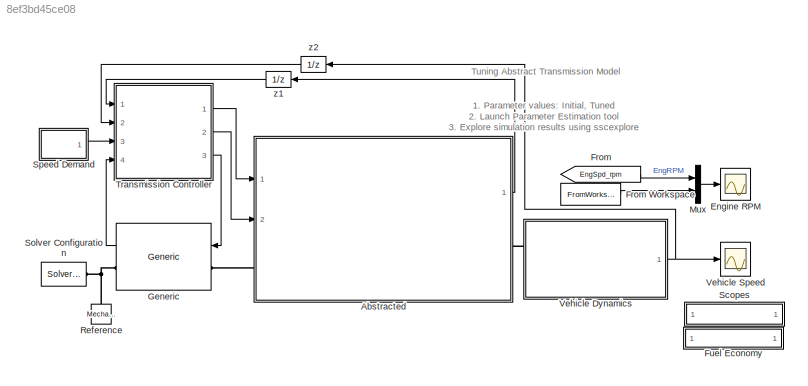
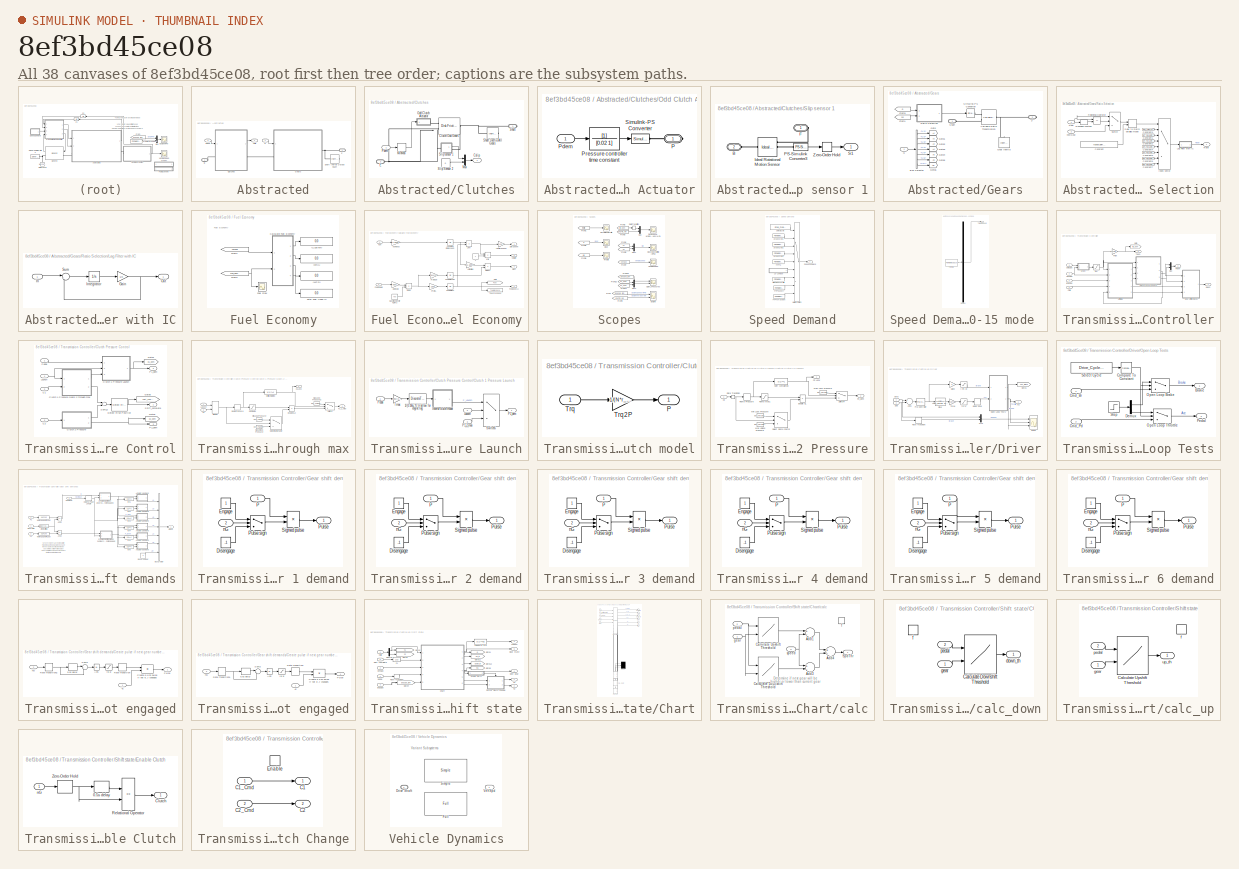
[diagram: thumbnail index - all 38 canvases of the model, root first then tree order]
MODEL slx_8ef3bd45ce08
KIND model
CONFIG AbsTol = auto
CONFIG EnableMultiTasking = on
CONFIG FixedStep = auto
CONFIG MaxStep = 0.1
CONFIG MinStep = auto
CONFIG PostLoadFcn = warning off Simulink:SampleTime:TsPropEnabOutputsChangeNotAligned;\nwarning off Simulink:blocks:MatchingFromNotFound\nwarning off Simulink:blocks:MatchingGotoNotFound\nwarning off Simulink:Engine:OutputNotConnected\nwarning off Simulink:Engine:LineWithoutDst\nwarning off Simulink:Engine:UINotUpdatedDuringRapidAccelSim\nwarning off Simulink:Commands:SetParamLinkChangeWarn\nwarning off Simulink:Engine:Save...<+31ch>
CONFIG PreLoadFcn = load UrbanCycle1;\nload UrbanCycle2;\nload UrbanCycle3;\nload UrbanCycle4;\nload UrbanCycle5;\nload UrbanCycle6;\nload UrbanCycle7;\nload UrbanCycle8;\nShift_Gear_Delay = 50;\nRatio_Time_Const = 0.1;\nDrive_Cycle_Num = 7;\nload RefRPMData;
CONFIG RelTol = 1e-3
CONFIG SampleTimeConstraint = Unconstrained
CONFIG Solver = ode1
CONFIG SolverName = ode1
CONFIG StartTime = 0.0
CONFIG StopTime = 15
BLOCK [SubSystem] Abstracted
  Ports = [2, 1, 0, 0, 0, 1, 1]
  RequestExecContextInheritance = off
BLOCK [PMIOPort] Abstracted/B
  Side = Left
BLOCK [SubSystem] Abstracted/Clutches
  Ports = [1, 1, 0, 0, 0, 1, 1]
  RequestExecContextInheritance = off
BLOCK [Reference] Abstracted/Clutches/Clutch Odd Gears  REF=sdl_lib/Clutches/Disk Friction Clutch
  Ports = [0, 0, 0, 0, 0, 2, 1]
  SourceBlock = sdl_lib/Clutches/Disk Friction Clutch
  SourceProductBaseCode = LD
  SourceProductName = Simscape Driveline
  SourceType = Disk Friction Clutch
BLOCK [Outport] Abstracted/Clutches/Cslip
  IconDisplay = Port number
BLOCK [PMIOPort] Abstracted/Clutches/E
  Port = 2
  Side = Left
BLOCK [MinMax] Abstracted/Clutches/MinMax
  Function = max
  InputSameDT = off
  Ports = [1, 1]
  SaturateOnIntegerOverflow = off
BLOCK [Mux] Abstracted/Clutches/Mux
  DisplayOption = bar
  Inputs = 2
  Ports = [2, 1]
BLOCK [SubSystem] Abstracted/Clutches/Odd Clutch Actuator
  Ports = [1, 0, 0, 0, 0, 0, 1]
  RequestExecContextInheritance = off
BLOCK [PMIOPort] Abstracted/Clutches/Odd Clutch Actuator/P
  Side = Right
BLOCK [Inport] Abstracted/Clutches/Odd Clutch Actuator/Pdem
  IconDisplay = Port number
BLOCK [TransferFcn] Abstracted/Clutches/Odd Clutch Actuator/Pressure controller time constant
  Denominator = [0.02 1]
BLOCK [Reference] Abstracted/Clutches/Odd Clutch Actuator/Simulink-PS Converter  REF=nesl_utility/Simulink-PS
Converter
  Ports = [1, 0, 0, 0, 0, 0, 1]
  SourceBlock = nesl_utility/Simulink-PS\nConverter
  SourceProductBaseCode = SS
  SourceProductName = Simscape
  SourceType = Simulink-PS\nConverter
BLOCK [Inport] Abstracted/Clutches/Pdem
  IconDisplay = Port number
BLOCK [PMIOPort] Abstracted/Clutches/Shaft
  Side = Right
BLOCK [Reference] Abstracted/Clutches/Shaft Inertia All Gears  REF=fl_lib/Mechanical/Rotational Elements/Inertia
  Ports = [0, 0, 0, 0, 0, 1]
  SourceBlock = fl_lib/Mechanical/Rotational Elements/Inertia
  SourceProductBaseCode = SS
  SourceProductName = Simscape
  SourceType = Inertia
BLOCK [Constant] Abstracted/Clutches/Slip Sensor 2
  Value = 0
BLOCK [SubSystem] Abstracted/Clutches/Slip sensor 1
  Ports = [0, 1, 0, 0, 0, 1, 1]
  RequestExecContextInheritance = off
BLOCK [PMIOPort] Abstracted/Clutches/Slip sensor 1/B
  Port = 2
  Side = Left
BLOCK [PMIOPort] Abstracted/Clutches/Slip sensor 1/F
  Side = Right
BLOCK [Reference] Abstracted/Clutches/Slip sensor 1/Ideal Rotational Motion Sensor  REF=fl_lib/Mechanical/Mechanical Sensors/Ideal Rotational
Motion Sensor
  Ports = [0, 0, 0, 0, 0, 1, 3]
  SourceBlock = fl_lib/Mechanical/Mechanical Sensors/Ideal Rotational\nMotion Sensor
  SourceProductBaseCode = SS
  SourceProductName = Simscape
  SourceType = Ideal Rotational\nMotion Sensor
BLOCK [Reference] Abstracted/Clutches/Slip sensor 1/PS-Simulink Converter3  REF=nesl_utility/PS-Simulink
Converter
  Ports = [0, 1, 0, 0, 0, 1]
  SourceBlock = nesl_utility/PS-Simulink\nConverter
  SourceProductBaseCode = SS
  SourceProductName = Simscape
  SourceType = PS-Simulink\nConverter
BLOCK [Outport] Abstracted/Clutches/Slip sensor 1/S1
  IconDisplay = Port number
BLOCK [ZeroOrderHold] Abstracted/Clutches/Slip sensor 1/Zero-Order Hold
  SampleTime = 0.01
BLOCK [Outport] Abstracted/Cslip
  IconDisplay = Port number
BLOCK [PMIOPort] Abstracted/F
  Port = 2
  Side = Right
BLOCK [Inport] Abstracted/G
  IconDisplay = Port number
BLOCK [SubSystem] Abstracted/Gears
  Ports = [1, 0, 0, 0, 0, 1, 1]
  RequestExecContextInheritance = off
BLOCK [BusSelector] Abstracted/Gears/Bus Selector
  OutputAsBus = off
  OutputSignals = U1,U2,U3,U4,U5,U6,UR
  Ports = [1, 7]
BLOCK [PMIOPort] Abstracted/Gears/F
  Port = 2
  Side = Right
BLOCK [From] Abstracted/Gears/From1
  GotoTag = nG
  TagVisibility = global
BLOCK [From] Abstracted/Gears/From9
  GotoTag = G
  TagVisibility = global
BLOCK [Inport] Abstracted/Gears/G
  IconDisplay = Port number
BLOCK [Reference] Abstracted/Gears/Gear Inertia  REF=fl_lib/Mechanical/Rotational Elements/Inertia
  Ports = [0, 0, 0, 0, 0, 1]
  SourceBlock = fl_lib/Mechanical/Rotational Elements/Inertia
  SourceProductBaseCode = SS
  SourceProductName = Simscape
  SourceType = Inertia
BLOCK [Goto] Abstracted/Gears/Goto
  GotoTag = A1
BLOCK [Goto] Abstracted/Gears/Goto1
  GotoTag = A2
BLOCK [Goto] Abstracted/Gears/Goto2
  GotoTag = A3
BLOCK [Goto] Abstracted/Gears/Goto3
  GotoTag = A4
BLOCK [Goto] Abstracted/Gears/Goto4
  GotoTag = A5
BLOCK [Goto] Abstracted/Gears/Goto5
  GotoTag = A6
BLOCK [Goto] Abstracted/Gears/Goto6
  GotoTag = AR
BLOCK [SubSystem] Abstracted/Gears/Ratio Selection
  Ports = [2, 1]
  RequestExecContextInheritance = off
BLOCK [Constant] Abstracted/Gears/Ratio Selection/Constant
  OutDataTypeStr = int8
  Value = round(Shift_Gear_Delay)
BLOCK [Constant] Abstracted/Gears/Ratio Selection/Constant1
  Value = DCT_Param.Transmission.Ratios(1)
BLOCK [Constant] Abstracted/Gears/Ratio Selection/Constant2
  Value = DCT_Param.Transmission.Ratios(2)
BLOCK [Constant] Abstracted/Gears/Ratio Selection/Constant3
  Value = 1.05*(max(DCT_Param.Transmission.Ratios))
BLOCK [Constant] Abstracted/Gears/Ratio Selection/Constant4
  Value = DCT_Param.Transmission.Ratios(3)
BLOCK [Constant] Abstracted/Gears/Ratio Selection/Constant5
  Value = DCT_Param.Transmission.Ratios(4)
BLOCK [Constant] Abstracted/Gears/Ratio Selection/Constant6
  Value = DCT_Param.Transmission.Ratios(5)
BLOCK [Constant] Abstracted/Gears/Ratio Selection/Constant7
  Value = DCT_Param.Transmission.Ratios(6)
BLOCK [Delay] Abstracted/Gears/Ratio Selection/Delay to match detailed model
  DelayLength = round(Shift_Gear_Delay)
  DelayLengthSource = Input port
  InitialCondition = 1
  InputPortMap = u0,p1
  Ports = [2, 1]
  SampleTime = 0.01
  UserDataPersistent = on
BLOCK [Inport] Abstracted/Gears/Ratio Selection/Gear
  IconDisplay = Port number
BLOCK [MultiPortSwitch] Abstracted/Gears/Ratio Selection/Index Vector
  DataPortOrder = Zero-based contiguous
  InputSameDT = off
  Inputs = 7
  Ports = [8, 1]
  SaturateOnIntegerOverflow = off
  zeroidx = on
BLOCK [SubSystem] Abstracted/Gears/Ratio Selection/Lag Filter with IC
  Ports = [1, 1]
  RequestExecContextInheritance = off
BLOCK [Gain] Abstracted/Gears/Ratio Selection/Lag Filter with IC/Gain
  Gain = 1/b
  OutDataTypeStr = Inherit: Inherit via internal rule
  ParamDataTypeStr = Inherit: Inherit via internal rule
  SaturateOnIntegerOverflow = off
BLOCK [Inport] Abstracted/Gears/Ratio Selection/Lag Filter with IC/In
  IconDisplay = Port number
BLOCK [Integrator] Abstracted/Gears/Ratio Selection/Lag Filter with IC/Integrator
  InitialCondition = x_initial*b
  Ports = [1, 1]
BLOCK [Outport] Abstracted/Gears/Ratio Selection/Lag Filter with IC/Out
  IconDisplay = Port number
BLOCK [Sum] Abstracted/Gears/Ratio Selection/Lag Filter with IC/Sum
  IconShape = round
  Inputs = |+-
  Ports = [2, 1]
BLOCK [Outport] Abstracted/Gears/Ratio Selection/Ratio
  IconDisplay = Port number
BLOCK [RelationalOperator] Abstracted/Gears/Ratio Selection/Relational Operator
  InputSameDT = off
  Operator = ==
  OutDataTypeStr = boolean
  Ports = [2, 1]
BLOCK [Rounding] Abstracted/Gears/Ratio Selection/Rounding Function
BLOCK [Switch] Abstracted/Gears/Ratio Selection/Switch
  Criteria = u2 > Threshold
  InputSameDT = off
  SaturateOnIntegerOverflow = off
BLOCK [Inport] Abstracted/Gears/Ratio Selection/nextGear
  IconDisplay = Port number
  Port = 2
BLOCK [PMIOPort] Abstracted/Gears/Shaft
  Side = Left
BLOCK [Reference] Abstracted/Gears/Simulink-PS Converter  REF=nesl_utility/Simulink-PS
Converter
  Ports = [1, 0, 0, 0, 0, 0, 1]
  SourceBlock = nesl_utility/Simulink-PS\nConverter
  SourceProductBaseCode = SS
  SourceProductName = Simscape
  SourceType = Simulink-PS\nConverter
BLOCK [Reference] Abstracted/Gears/Variable Ratio Transmission  REF=sdl_lib/Couplings & Drives/Variable Ratio
Transmission
  Ports = [0, 0, 0, 0, 0, 2, 1]
  SourceBlock = sdl_lib/Couplings & Drives/Variable Ratio\nTransmission
  SourceProductBaseCode = LD
  SourceProductName = Simscape Driveline
  SourceType = Variable Ratio\nTransmission
BLOCK [Inport] Abstracted/Pdem
  IconDisplay = Port number
  Port = 2
BLOCK [Reference] Abstracted/Shaft Inertia Output Shaft  REF=fl_lib/Mechanical/Rotational Elements/Inertia
  Ports = [0, 0, 0, 0, 0, 1]
  SourceBlock = fl_lib/Mechanical/Rotational Elements/Inertia
  SourceProductBaseCode = SS
  SourceProductName = Simscape
  SourceType = Inertia
BLOCK [Scope] Engine RPM
  ExtModeUploadOption = log
  Floating = off
  NumInputPorts = 1
  Ports = [1]
  ScopeSpecificationString = Simulink.scopes.TimeScopeBlockCfg('CurrentConfiguration', extmgr.ConfigurationSet(extmgr.Configuration('Core','General UI',true,'FigureColor',[0.501960784313725 0.501960784313725 0.501960784313725]),extmgr.Configuration('Core','Source UI',true),extmgr.Configuration('Sources','WiredSimulink',true,'DataLoggingVariableName','EngineRPM','DataLoggingSaveFormat','StructureWithTime','DataLoggingMaxPoints...<+2628ch>
BLOCK [From] From
  GotoTag = EngSpd_rpm
  TagVisibility = global
BLOCK [FromWorkspace] From Workspace
  SampleTime = 0.01
  VariableName = [Ref_EngRPM_time Ref_EngRPM]
  ZeroCross = on
BLOCK [SubSystem] Fuel Economy
  Ports = []
  RequestExecContextInheritance = off
BLOCK [Display] Fuel Economy/(L//100 km)
  Decimation = decimation
  Ports = [1]
BLOCK [Display] Fuel Economy/(MPG)
  Decimation = decimation
  Ports = [1]
BLOCK [Display] Fuel Economy/(km//L)
  Decimation = decimation
  Ports = [1]
BLOCK [SubSystem] Fuel Economy/Calculate Fuel Economy
  Ports = [2, 4]
  RequestExecContextInheritance = off
BLOCK [Constant] Fuel Economy/Calculate Fuel Economy/1
BLOCK [Integrator] Fuel Economy/Calculate Fuel Economy/Cumulative Distance Km
  InitialCondition = eps
  Ports = [1, 1]
BLOCK [Integrator] Fuel Economy/Calculate Fuel Economy/Cumulative Gal
  InitialCondition = eps
  Ports = [1, 1]
BLOCK [Integrator] Fuel Economy/Calculate Fuel Economy/Cumulative L
  InitialCondition = eps
  Ports = [1, 1]
BLOCK [Product] Fuel Economy/Calculate Fuel Economy/Divide
  InputSameDT = off
  Inputs = */
  OutDataTypeStr = Inherit: Inherit via internal rule
  Ports = [2, 1]
  RndMeth = Floor
  SaturateOnIntegerOverflow = off
BLOCK [Product] Fuel Economy/Calculate Fuel Economy/Divide1
  InputSameDT = off
  Inputs = */
  OutDataTypeStr = Inherit: Inherit via internal rule
  Ports = [2, 1]
  RndMeth = Floor
  SaturateOnIntegerOverflow = off
BLOCK [Inport] Fuel Economy/Calculate Fuel Economy/Fuel Flow g//s
  IconDisplay = Port number
  Port = 2
BLOCK [Outport] Fuel Economy/Calculate Fuel Economy/Fuel Used (L)
  IconDisplay = Port number
  Port = 4
BLOCK [Constant] Fuel Economy/Calculate Fuel Economy/Gasoline Density Kg//m^3
  Value = 750
BLOCK [Goto] Fuel Economy/Calculate Fuel Economy/Goto
  GotoTag = Fuel
  TagVisibility = global
BLOCK [Gain] Fuel Economy/Calculate Fuel Economy/Km to miles
  Gain = 1/1.609344
  OutDataTypeStr = Inherit: Inherit via internal rule
  ParamDataTypeStr = Inherit: Inherit via internal rule
  SaturateOnIntegerOverflow = off
BLOCK [Outport] Fuel Economy/Calculate Fuel Economy/Km//Liter
  IconDisplay = Port number
  Port = 2
BLOCK [Inport] Fuel Economy/Calculate Fuel Economy/Kph
  IconDisplay = Port number
BLOCK [Gain] Fuel Economy/Calculate Fuel Economy/Kph to Kps
  Gain = 1/3600
  OutDataTypeStr = Inherit: Inherit via internal rule
  ParamDataTypeStr = Inherit: Inherit via internal rule
  SaturateOnIntegerOverflow = off
BLOCK [Product] Fuel Economy/Calculate Fuel Economy/L//Km
  InputSameDT = off
  Inputs = /*
  OutDataTypeStr = Inherit: Inherit via internal rule
  Ports = [2, 1]
  RndMeth = Floor
  SaturateOnIntegerOverflow = off
BLOCK [Gain] Fuel Economy/Calculate Fuel Economy/L//Km to L//100Km
  Gain = 100
  OutDataTypeStr = Inherit: Inherit via internal rule
  ParamDataTypeStr = Inherit: Inherit via internal rule
  SaturateOnIntegerOverflow = off
BLOCK [Outport] Fuel Economy/Calculate Fuel Economy/Liter//100Km
  IconDisplay = Port number
BLOCK [Outport] Fuel Economy/Calculate Fuel Economy/MPG
  IconDisplay = Port number
  Port = 3
BLOCK [ToWorkspace] Fuel Economy/Calculate Fuel Economy/To Workspace
  MaxDataPoints = 1
  Ports = [1]
  SampleTime = -1
  VariableName = FuelUsedLiters
BLOCK [Gain] Fuel Economy/Calculate Fuel Economy/g//s to Kg//s
  Gain = 0.001
  OutDataTypeStr = Inherit: Inherit via internal rule
  ParamDataTypeStr = Inherit: Inherit via internal rule
  SaturateOnIntegerOverflow = off
BLOCK [Product] Fuel Economy/Calculate Fuel Economy/km//l
  InputSameDT = off
  Inputs = /*
  OutDataTypeStr = Inherit: Inherit via internal rule
  Ports = [2, 1]
  RndMeth = Floor
  SaturateOnIntegerOverflow = off
BLOCK [Gain] Fuel Economy/Calculate Fuel Economy/m^3 to L
  Gain = 1000
  OutDataTypeStr = Inherit: Inherit via internal rule
  ParamDataTypeStr = Inherit: Inherit via internal rule
  SaturateOnIntegerOverflow = off
BLOCK [Gain] Fuel Economy/Calculate Fuel Economy/m^3 to gal
  Gain = 264.172
  OutDataTypeStr = Inherit: Inherit via internal rule
  ParamDataTypeStr = Inherit: Inherit via internal rule
  SaturateOnIntegerOverflow = off
BLOCK [From] Fuel Economy/From1
  GotoTag = VehSpd
  TagVisibility = global
BLOCK [From] Fuel Economy/From2
  GotoTag = Fuel_Flow_gps
  TagVisibility = global
BLOCK [Scope] Fuel Economy/Fuel Flow
  Floating = off
  NumInputPorts = 1
  Ports = [1]
  ScopeSpecificationString = C++SS(StrPVP('Location','[553, 628, 1235, 1006]'),StrPVP('Open','off'),StrPVP('ZoomMode','xonly'),MxPVP('AxesTitles',54,'struct(''axes1'','' '')'),StrPVP('YMin','0'),StrPVP('YMax','7000'),StrPVP('SaveToWorkspace','on'),StrPVP('SaveName','Fuel_Flow_DATA'),StrPVP('DataFormat','StructureWithTime'),StrPVP('LimitDataPoints','off'),StrPVP('MaxDataPoints','50000'),StrPVP('BlockParamSampleTime','0'),StrPV...<+166ch>
BLOCK [Display] Fuel Economy/Total Fuel Used (L)
  Decimation = decimation
  Ports = [1]
BLOCK [Reference] Generic  REF=Engine_Lib/Generic
  Ports = [1, 1, 0, 0, 0, 1, 1]
  SourceBlock = Engine_Lib/Generic
BLOCK [Mux] Mux
  DisplayOption = bar
  Inputs = 2
  Ports = [2, 1]
BLOCK [Reference] Reference  REF=fl_lib/Mechanical/Rotational Elements/Mechanical
Rotational Reference
  Ports = [0, 0, 0, 0, 0, 1]
  SourceBlock = fl_lib/Mechanical/Rotational Elements/Mechanical\nRotational Reference
  SourceProductBaseCode = SS
  SourceProductName = Simscape
  SourceType = Mechanical\nRotational Reference
BLOCK [SubSystem] Scopes
  Ports = []
  RequestExecContextInheritance = off
BLOCK [Scope] Scopes/Clutch_Pressures
  Floating = off
  NumInputPorts = 2
  Ports = [2]
  ScopeSpecificationString = C++SS(StrPVP('Location','[1186, 75, 1673, 748]'),StrPVP('Open','off'),StrPVP('ZoomMode','xonly'),MxPVP('AxesTitles',54,'struct(''axes1'','' '',''axes2'',''%<SignalLabel>'')'),StrPVP('YMin','0~0'),StrPVP('YMax','6000~5000000'),StrPVP('SaveName','Torque1'),StrPVP('DataFormat','StructureWithTime'),StrPVP('LimitDataPoints','off'),StrPVP('MaxDataPoints','50000'),StrPVP('BlockParamSampleTime','0'),StrPV...<+166ch>
BLOCK [Scope] Scopes/Demanded & achieved torques (N-m)
  Floating = off
  NumInputPorts = 1
  Ports = [1]
  ScopeSpecificationString = C++SS(StrPVP('Location','[44, 556, 1550, 1044]'),StrPVP('Open','off'),MxPVP('AxesTitles',54,'struct(''axes1'','' '')'),StrPVP('TimeRange','30'),StrPVP('YMin','0'),StrPVP('YMax','200'),StrPVP('SaveName','Torque'),StrPVP('LimitDataPoints','off'),StrPVP('MaxDataPoints','50000'),StrPVP('BlockParamSampleTime','0'),StrPVP('DataFormat','Array'),StrPVP('DataLoggingDecimation','1'),StrPVP('BlockParamSample...<+111ch>
BLOCK [Scope] Scopes/Engine
  Floating = off
  NumInputPorts = 2
  Ports = [2]
  ScopeSpecificationString = C++SS(StrPVP('Location','[630, 109, 1015, 632]'),StrPVP('Open','off'),StrPVP('ZoomMode','xonly'),MxPVP('AxesTitles',54,'struct(''axes1'','' '',''axes2'',''%<SignalLabel>'')'),StrPVP('YMin','0~-5'),StrPVP('YMax','6000~5'),StrPVP('SaveToWorkspace','on'),StrPVP('SaveName','Engine_DATA'),StrPVP('DataFormat','StructureWithTime'),StrPVP('LimitDataPoints','off'),StrPVP('MaxDataPoints','50000'),StrPVP('Bl...<+196ch>
BLOCK [From] Scopes/From
  GotoTag = EngSpd_rpm
  TagVisibility = global
BLOCK [From] Scopes/From1
  GotoTag = throttle
  TagVisibility = global
BLOCK [From] Scopes/From13
  GotoTag = p1_dem
  TagVisibility = global
BLOCK [From] Scopes/From14
  GotoTag = p2_dem
  TagVisibility = global
BLOCK [From] Scopes/From15
  GotoTag = EngSpd_rpm
  TagVisibility = global
BLOCK [From] Scopes/From2
  GotoTag = trq_dem
  TagVisibility = global
BLOCK [From] Scopes/From3
  GotoTag = EngTrq_Nm
  TagVisibility = global
BLOCK [From] Scopes/From4
  GotoTag = S1
  TagVisibility = global
BLOCK [From] Scopes/From5
  GotoTag = S2
  TagVisibility = global
BLOCK [From] Scopes/From6
  GotoTag = G
  TagVisibility = global
BLOCK [From] Scopes/From7
  GotoTag = VehSpd
  TagVisibility = global
BLOCK [From] Scopes/From8
  GotoTag = slip
BLOCK [From] Scopes/From9
  GotoTag = EngTrq_Nm
  TagVisibility = global
BLOCK [Scope] Scopes/Gear
  Floating = off
  NumInputPorts = 1
  Ports = [1]
  ScopeSpecificationString = C++SS(StrPVP('Location','[754, 566, 1524, 811]'),StrPVP('Open','off'),StrPVP('ZoomMode','xonly'),MxPVP('AxesTitles',54,'struct(''axes1'','' '')'),StrPVP('YMin','0'),StrPVP('YMax','5.5'),StrPVP('SaveToWorkspace','on'),StrPVP('SaveName','CurrentGear_DATA'),StrPVP('DataFormat','StructureWithTime'),StrPVP('LimitDataPoints','off'),StrPVP('MaxDataPoints','50000'),StrPVP('BlockParamSampleTime','0'),StrPV...<+166ch>
BLOCK [Scope] Scopes/Gearbox shaft slip (RPM)
  Floating = off
  NumInputPorts = 1
  Ports = [1]
  ScopeSpecificationString = C++SS(StrPVP('Location','[158, 200, 1675, 760]'),StrPVP('Open','off'),StrPVP('ZoomMode','xonly'),MxPVP('AxesTitles',54,'struct(''axes1'','' '')'),StrPVP('YMin','-4000'),StrPVP('YMax','4000'),StrPVP('SaveName','ScopeData1'),StrPVP('DataFormat','StructureWithTime'),StrPVP('MaxDataPoints','50000'),StrPVP('BlockParamSampleTime','0'),StrPVP('LimitDataPoints','on'),StrPVP('DataLoggingDecimation','1'),St...<+133ch>
BLOCK [Mux] Scopes/Mux
  DisplayOption = bar
  Inputs = 2
  Ports = [2, 1]
BLOCK [Mux] Scopes/Mux1
  DisplayOption = bar
  Inputs = 2
  Ports = [2, 1]
BLOCK [Mux] Scopes/Mux3
  DisplayOption = bar
  Inputs = 2
  Ports = [2, 1]
BLOCK [Scope] Scopes/Normalized throttle
  Floating = off
  NumInputPorts = 1
  Ports = [1]
  ScopeSpecificationString = C++SS(StrPVP('Location','[627, 615, 1336, 849]'),StrPVP('Open','off'),StrPVP('ZoomMode','xonly'),MxPVP('AxesTitles',54,'struct(''axes1'','' '')'),StrPVP('TimeRange','30'),StrPVP('YMin','0'),StrPVP('YMax','1'),StrPVP('DataFormat','StructureWithTime'),StrPVP('MaxDataPoints','50000'),StrPVP('BlockParamSampleTime','0'),StrPVP('LimitDataPoints','on'),StrPVP('DataLoggingDecimation','1'),StrPVP('BlockPar...<+119ch>
BLOCK [RateTransition] Scopes/Rate Transition
BLOCK [Scope] Scopes/Tire slip
  Floating = off
  NumInputPorts = 1
  Ports = [1]
  ScopeSpecificationString = C++SS(StrPVP('Location','[135, 376, 435, 574]'),StrPVP('Open','off'),MxPVP('AxesTitles',54,'struct(''axes1'',''%<SignalLabel>'')'),StrPVP('YMin','0'),StrPVP('YMax','0.04'),StrPVP('SaveName','TireSlip'),StrPVP('LimitDataPoints','off'),StrPVP('MaxDataPoints','500000'),StrPVP('BlockParamSampleTime','0.1'),StrPVP('DataFormat','Array'),StrPVP('DataLoggingDecimation','1'),StrPVP('BlockParamSampleInput',...<+104ch>
BLOCK [Scope] Scopes/Vehicle speed
  Floating = off
  NumInputPorts = 1
  Ports = [1]
  ScopeSpecificationString = C++SS(StrPVP('Location','[247, 513, 845, 951]'),StrPVP('Open','off'),MxPVP('AxesTitles',54,'struct(''axes1'','' '')'),StrPVP('YMin','-10'),StrPVP('YMax','50'),StrPVP('SaveToWorkspace','on'),StrPVP('SaveName','VehicleSpeed_DATA'),StrPVP('DataFormat','StructureWithTime'),StrPVP('LimitDataPoints','off'),StrPVP('MaxDataPoints','50000'),StrPVP('BlockParamSampleTime','0'),StrPVP('DataLoggingDecimation',...<+140ch>
BLOCK [Reference] Solver Configuration  REF=nesl_utility/Solver
Configuration
  Ports = [0, 0, 0, 0, 0, 0, 1]
  SourceBlock = nesl_utility/Solver\nConfiguration
  SourceProductBaseCode = SS
  SourceProductName = Simscape
  SourceType = Solver\nConfiguration
BLOCK [SubSystem] Speed Demand
  Ports = [0, 1]
  RequestExecContextInheritance = off
BLOCK [SubSystem] Speed Demand/10-15 mode 
  ClipboardFcn = sigbuilder_block('clipboard');
  CloseFcn = sigbuilder_block('close');
  ContinueFcn = sigbuilder_block('continue')
  CopyFcn = sigbuilder_block('copy');
  DeleteFcn = sigbuilder_block('delete');
  LoadFcn = sigbuilder_block('load');
  MaskHideContents = on
  ModelCloseFcn = sigbuilder_block('modelClose');
  NameChangeFcn = sigbuilder_block('namechange');
  OpenFcn = sigbuilder_block('open',[561.75 178.5 550.5 399 ]);
  PauseFcn = sigbuilder_block('pause')
  Ports = [0, 1]
  PreSaveFcn = sigbuilder_block('preSave');
  RequestExecContextInheritance = off
  StartFcn = sigbuilder_block('start');
  StopFcn = sigbuilder_block('stop');
  Tag = STV Subsys
BLOCK [Demux] Speed Demand/10-15 mode /Demux
  Outputs = 1
  Ports = [1, 1]
  Tag = STV Demux
BLOCK [FromWorkspace] Speed Demand/10-15 mode /FromWs
  SampleTime = 0
  Tag = STV FromWs
  VariableName = tuvar
  ZeroCross = on
BLOCK [Outport] Speed Demand/10-15 mode /Target speed
  IconDisplay = Port number
  Tag = STV Outport
BLOCK [FromWorkspace] Speed Demand/FTP75
  SampleTime = 0
  VariableName = [UrbanCycle4.time UrbanCycle4.SpdKph]
  ZeroCross = on
BLOCK [FromWorkspace] Speed Demand/FTP75 Transient
  SampleTime = 0
  VariableName = [UrbanCycle8.time UrbanCycle8.SpdKph]
  ZeroCross = on
BLOCK [FromWorkspace] Speed Demand/FTP75 short
  SampleTime = 0
  VariableName = [UrbanCycle7.time UrbanCycle7.SpdKph]
  ZeroCross = on
BLOCK [MultiPortSwitch] Speed Demand/Multiport Switch
  InputSameDT = off
  Inputs = 8
  Ports = [9, 1]
  SaturateOnIntegerOverflow = off
BLOCK [Constant] Speed Demand/Select Cycle
  Value = Drive_Cycle_Num
BLOCK [Outport] Speed Demand/Speed Command
  IconDisplay = Port number
BLOCK [FromWorkspace] Speed Demand/Urban Cycle 1
  SampleTime = 0
  VariableName = [UrbanCycle1.time UrbanCycle1.SpdKph]
  ZeroCross = on
BLOCK [FromWorkspace] Speed Demand/Urban Cycle 2
  SampleTime = 0
  VariableName = [UrbanCycle2.time UrbanCycle2.SpdKph]
  ZeroCross = on
BLOCK [FromWorkspace] Speed Demand/Urban Cycle 3
  SampleTime = 0
  VariableName = [UrbanCycle3.time UrbanCycle3.SpdKph]
  ZeroCross = on
BLOCK [FromWorkspace] Speed Demand/Wide Open Throttle
  SampleTime = 0
  VariableName = [UrbanCycle4.time UrbanCycle4.SpdKph]
  ZeroCross = on
BLOCK [SubSystem] Transmission Controller
  Ports = [4, 3]
  RequestExecContextInheritance = off
BLOCK [SubSystem] Transmission Controller/Clutch Pressure Control
  Ports = [4, 3]
  RequestExecContextInheritance = off
BLOCK [Inport] Transmission Controller/Clutch Pressure Control/C1
  IconDisplay = Port number
  Port = 2
BLOCK [Inport] Transmission Controller/Clutch Pressure Control/C2
  IconDisplay = Port number
  Port = 3
BLOCK [SubSystem] Transmission Controller/Clutch Pressure Control/Clutch 1 Pressure Gears 2 through max
  Ports = [2, 2]
  RequestExecContextInheritance = off
BLOCK [Inport] Transmission Controller/Clutch Pressure Control/Clutch 1 Pressure Gears 2 through max/C1
  IconDisplay = Port number
  Port = 2
BLOCK [Outport] Transmission Controller/Clutch Pressure Control/Clutch 1 Pressure Gears 2 through max/C1 Lock
  IconDisplay = Port number
  Port = 2
BLOCK [Product] Transmission Controller/Clutch Pressure Control/Clutch 1 Pressure Gears 2 through max/Enable CL2
  Ports = [2, 1]
  RndMeth = Floor
BLOCK [Inport] Transmission Controller/Clutch Pressure Control/Clutch 1 Pressure Gears 2 through max/Launch
  IconDisplay = Port number
BLOCK [Constant] Transmission Controller/Clutch Pressure Control/Clutch 1 Pressure Gears 2 through max/Max Lock Pressure2
  SampleTime = 0.01
  Value = DCT_Param.Control.Clutch.Max_Lock_Pressure
BLOCK [Constant] Transmission Controller/Clutch Pressure Control/Clutch 1 Pressure Gears 2 through max/Max Unlock Pressure
  SampleTime = 0.01
  Value = DCT_Param.Control.Clutch.Max_Unlock_Pressure
BLOCK [Constant] Transmission Controller/Clutch Pressure Control/Clutch 1 Pressure Gears 2 through max/Min Lock Pressure
  SampleTime = 0.01
  Value = DCT_Param.Control.Clutch.Min_Lock_Pressure
BLOCK [MinMax] Transmission Controller/Clutch Pressure Control/Clutch 1 Pressure Gears 2 through max/MinMax
  Function = max
  InputSameDT = off
  Inputs = 2
  Ports = [2, 1]
  SaturateOnIntegerOverflow = off
BLOCK [Outport] Transmission Controller/Clutch Pressure Control/Clutch 1 Pressure Gears 2 through max/P1_2_max
  IconDisplay = Port number
BLOCK [Saturate] Transmission Controller/Clutch Pressure Control/Clutch 1 Pressure Gears 2 through max/Ramp Max
  InputPortMap = u0
  LowerLimit = 0
  Ports = [1, 1]
  UpperLimit = 1/0.5
BLOCK [RateLimiter] Transmission Controller/Clutch Pressure Control/Clutch 1 Pressure Gears 2 through max/Ramp Pressure
  FallingSlewLimit = -1/0.5
  RisingSlewLimit = 1/0.5
  SampleTimeMode = inherited
BLOCK [Switch] Transmission Controller/Clutch Pressure Control/Clutch 1 Pressure Gears 2 through max/Select Ramp Factor
  InputSameDT = off
  SaturateOnIntegerOverflow = off
  Threshold = 1
BLOCK [Fcn] Transmission Controller/Clutch Pressure Control/Clutch 1 Pressure Gears 2 through max/Shift completed
  Expr = u(1)>=1
  SampleTime = 0.01
BLOCK [Switch] Transmission Controller/Clutch Pressure Control/Clutch 1 Pressure Gears 2 through max/Switch2
  InputSameDT = off
  SaturateOnIntegerOverflow = off
  Threshold = 1
BLOCK [SubSystem] Transmission Controller/Clutch Pressure Control/Clutch 1 Pressure Launch
  Ports = [3, 1]
  RequestExecContextInheritance = off
BLOCK [DiscreteTransferFcn] Transmission Controller/Clutch Pressure Control/Clutch 1 Pressure Launch/1//(0.18s+1) to allow for engine lag
  Denominator = [1 -0.946]
  InputPortMap = u0
  Numerator = 0.054
  Ports = [1, 1]
  SampleTime = 0.01
BLOCK [SubSystem] Transmission Controller/Clutch Pressure Control/Clutch 1 Pressure Launch/Inverse clutch model
  Ports = [1, 1]
  RequestExecContextInheritance = off
BLOCK [Outport] Transmission Controller/Clutch Pressure Control/Clutch 1 Pressure Launch/Inverse clutch model/P
  IconDisplay = Port number
BLOCK [Inport] Transmission Controller/Clutch Pressure Control/Clutch 1 Pressure Launch/Inverse clutch model/Trq
  IconDisplay = Port number
BLOCK [Gain] Transmission Controller/Clutch Pressure Control/Clutch 1 Pressure Launch/Inverse clutch model/Trq2P
  Gain = 1/(N*r_eff*mu*A)
BLOCK [Inport] Transmission Controller/Clutch Pressure Control/Clutch 1 Pressure Launch/Launch
  IconDisplay = Port number
  Port = 2
BLOCK [Inport] Transmission Controller/Clutch Pressure Control/Clutch 1 Pressure Launch/P1_2_max
  IconDisplay = Port number
  Port = 3
BLOCK [Outport] Transmission Controller/Clutch Pressure Control/Clutch 1 Pressure Launch/P1_dem
  IconDisplay = Port number
BLOCK [Inport] Transmission Controller/Clutch Pressure Control/Clutch 1 Pressure Launch/Pedal
  IconDisplay = Port number
BLOCK [Switch] Transmission Controller/Clutch Pressure Control/Clutch 1 Pressure Launch/Switch5
  InputSameDT = off
  SaturateOnIntegerOverflow = off
  Threshold = 1
BLOCK [Gain] Transmission Controller/Clutch Pressure Control/Clutch 1 Pressure Launch/Tmax
  Gain = 92e3/(2*pi*5500/60)
BLOCK [SubSystem] Transmission Controller/Clutch Pressure Control/Clutch 2 Pressure
  Ports = [1, 2]
  RequestExecContextInheritance = off
BLOCK [Inport] Transmission Controller/Clutch Pressure Control/Clutch 2 Pressure/C2
  IconDisplay = Port number
BLOCK [Outport] Transmission Controller/Clutch Pressure Control/Clutch 2 Pressure/C2 Lock
  IconDisplay = Port number
BLOCK [Product] Transmission Controller/Clutch Pressure Control/Clutch 2 Pressure/Enable CL
  Ports = [2, 1]
  RndMeth = Floor
BLOCK [Constant] Transmission Controller/Clutch Pressure Control/Clutch 2 Pressure/Max Lock Pressure
  SampleTime = 0.01
  Value = DCT_Param.Control.Clutch.Max_Lock_Pressure
BLOCK [Constant] Transmission Controller/Clutch Pressure Control/Clutch 2 Pressure/Max Unlock Pressure
  SampleTime = 0.01
  Value = DCT_Param.Control.Clutch.Max_Unlock_Pressure
BLOCK [Constant] Transmission Controller/Clutch Pressure Control/Clutch 2 Pressure/Min Lock Pressure
  SampleTime = 0.01
  Value = DCT_Param.Control.Clutch.Min_Lock_Pressure
BLOCK [Outport] Transmission Controller/Clutch Pressure Control/Clutch 2 Pressure/P2_dem
  IconDisplay = Port number
  Port = 2
BLOCK [Saturate] Transmission Controller/Clutch Pressure Control/Clutch 2 Pressure/Ramp Max1
  InputPortMap = u0
  LowerLimit = 0
  Ports = [1, 1]
  UpperLimit = 1/0.5
BLOCK [RateLimiter] Transmission Controller/Clutch Pressure Control/Clutch 2 Pressure/Ramp Pressure
  FallingSlewLimit = -1/0.5
  RisingSlewLimit = 1/0.5
  SampleTimeMode = inherited
BLOCK [RateTransition] Transmission Controller/Clutch Pressure Control/Clutch 2 Pressure/Rate Transition
  OutPortSampleTime = 0.01
BLOCK [Switch] Transmission Controller/Clutch Pressure Control/Clutch 2 Pressure/Select Ramp Factor
  InputSameDT = off
  SaturateOnIntegerOverflow = off
  Threshold = 1
BLOCK [Fcn] Transmission Controller/Clutch Pressure Control/Clutch 2 Pressure/Shift completed
  Expr = u(1)>=1
  SampleTime = 0.01
BLOCK [Switch] Transmission Controller/Clutch Pressure Control/Clutch 2 Pressure/Switch4
  InputSameDT = off
  SaturateOnIntegerOverflow = off
  Threshold = 1
BLOCK [Reference] Transmission Controller/Clutch Pressure Control/Detect Rise Positive  REF=simulink/Logic and Bit
Operations/Detect Rise
Positive
  Ports = [1, 1]
  SourceBlock = simulink/Logic and Bit\nOperations/Detect Rise\nPositive
  SourceProductBaseCode = SL
  SourceProductName = Simulink
  SourceType = Detect Rise Positive
BLOCK [Goto] Transmission Controller/Clutch Pressure Control/Goto1
  GotoTag = p1_dem
  TagVisibility = global
BLOCK [Goto] Transmission Controller/Clutch Pressure Control/Goto2
  GotoTag = p2_dem
  TagVisibility = global
BLOCK [Goto] Transmission Controller/Clutch Pressure Control/Goto5
  GotoTag = shift_complete
  TagVisibility = global
BLOCK [Inport] Transmission Controller/Clutch Pressure Control/Launch
  IconDisplay = Port number
  Port = 4
BLOCK [Outport] Transmission Controller/Clutch Pressure Control/P1_dem
  IconDisplay = Port number
  InitialOutput = 0
  OutputWhenDisabled = reset
  Port = 2
BLOCK [Outport] Transmission Controller/Clutch Pressure Control/P2_dem
  IconDisplay = Port number
  InitialOutput = 0
  OutputWhenDisabled = reset
  Port = 3
BLOCK [Inport] Transmission Controller/Clutch Pressure Control/Pedal
  IconDisplay = Port number
BLOCK [Outport] Transmission Controller/Clutch Pressure Control/Shift_complete
  IconDisplay = Port number
  InitialOutput = 0
  OutputWhenDisabled = reset
BLOCK [Sum] Transmission Controller/Clutch Pressure Control/Sum12
  Ports = [2, 1]
BLOCK [Inport] Transmission Controller/CmdSpd
  IconDisplay = Port number
  Port = 3
BLOCK [Inport] Transmission Controller/Cslip
  IconDisplay = Port number
BLOCK [SubSystem] Transmission Controller/Driver
  Ports = [2, 1]
  RequestExecContextInheritance = off
BLOCK [Outport] Transmission Controller/Driver/Acc
  IconDisplay = Port number
BLOCK [Sum] Transmission Controller/Driver/Add1
  InputSameDT = off
  Inputs = +-
  OutDataTypeStr = Inherit: Inherit via internal rule
  Ports = [2, 1]
  SampleTime = 0.01
  SaturateOnIntegerOverflow = off
BLOCK [Inport] Transmission Controller/Driver/Cmd
  IconDisplay = Port number
BLOCK [DeadZone] Transmission Controller/Driver/Dead Zone
  LowerValue = 0
  UpperValue = 2e-2
BLOCK [Scope] Transmission Controller/Driver/Driver
  Floating = off
  NumInputPorts = 3
  Ports = [3]
  ScopeSpecificationString = C++SS(StrPVP('Location','[164, 67, 943, 1011]'),StrPVP('Open','off'),StrPVP('ZoomMode','xonly'),MxPVP('AxesTitles',54,'struct(''axes1'','' '',''axes2'',''%<SignalLabel>'',''axes3'',''%<SignalLabel>'')'),StrPVP('YMin','-5~0~-500'),StrPVP('YMax','35~0.5~0'),StrPVP('SaveToWorkspace','on'),StrPVP('SaveName','Driver_DATA'),StrPVP('DataFormat','StructureWithTime'),StrPVP('LimitDataPoints','off'),StrPVP(...<+231ch>
BLOCK [TransferFcn] Transmission Controller/Driver/Filter
  Denominator = [DCT_Param.Driver.Pedal_Filter_Const 1]
BLOCK [Gain] Transmission Controller/Driver/Gain2
  Gain = 8
  OutDataTypeStr = Inherit: Inherit via internal rule
  ParamDataTypeStr = Inherit: Inherit via internal rule
  SaturateOnIntegerOverflow = off
BLOCK [Goto] Transmission Controller/Driver/Goto1
  GotoTag = Veh_Brake
  TagVisibility = global
BLOCK [Mux] Transmission Controller/Driver/Mux
  DisplayOption = bar
  Inputs = 2
  Ports = [2, 1]
BLOCK [SubSystem] Transmission Controller/Driver/Open Loop Tests
  Ports = [2, 2]
  RequestExecContextInheritance = off
BLOCK [Outport] Transmission Controller/Driver/Open Loop Tests/Brake
  IconDisplay = Port number
BLOCK [Inport] Transmission Controller/Driver/Open Loop Tests/Cmd_Br
  IconDisplay = Port number
BLOCK [Inport] Transmission Controller/Driver/Open Loop Tests/Cmd_Pd
  IconDisplay = Port number
  Port = 2
BLOCK [Reference] Transmission Controller/Driver/Open Loop Tests/Compare To Constant  REF=simulink/Logic and Bit
Operations/Compare
To Constant
  Ports = [1, 1]
  SourceBlock = simulink/Logic and Bit\nOperations/Compare\nTo Constant
  SourceProductBaseCode = SL
  SourceProductName = Simulink
  SourceType = Compare To Constant
BLOCK [Demux] Transmission Controller/Driver/Open Loop Tests/Demux
  DisplayOption = bar
  Outputs = 2
  Ports = [1, 2]
BLOCK [Switch] Transmission Controller/Driver/Open Loop Tests/Open Loop Brake
  Criteria = u2 > Threshold
  InputSameDT = off
  SaturateOnIntegerOverflow = off
BLOCK [Switch] Transmission Controller/Driver/Open Loop Tests/Open Loop Throttle
  Criteria = u2 > Threshold
  InputSameDT = off
  SampleTime = 0.01
  SaturateOnIntegerOverflow = off
BLOCK [Outport] Transmission Controller/Driver/Open Loop Tests/Pedal
  IconDisplay = Port number
  Port = 2
BLOCK [Constant] Transmission Controller/Driver/Open Loop Tests/Select Cycle
  SampleTime = 0.01
  Value = Drive_Cycle_Num
BLOCK [Step] Transmission Controller/Driver/Open Loop Tests/Step
  After = [-550 0]
  Before = [0 1]
  SampleTime = 0
  Time = [30 30]
BLOCK [Reference] Transmission Controller/Driver/PID Controller  REF=simulink/Continuous/PID Controller
  Ports = [1, 1]
  SourceBlock = simulink/Continuous/PID Controller
  SourceProductBaseCode = SL
  SourceProductName = Simulink
  SourceType = PID 1dof
BLOCK [RateTransition] Transmission Controller/Driver/Rate Transition
BLOCK [Inport] Transmission Controller/Driver/Spd
  IconDisplay = Port number
  Port = 2
BLOCK [Gain] Transmission Controller/Driver/Tmax
  Gain = 1/370
BLOCK [Saturate] Transmission Controller/Driver/[-inf,0]
  InputPortMap = u0
  LowerLimit = -inf
  Ports = [1, 1]
  UpperLimit = 0
BLOCK [Saturate] Transmission Controller/Driver/[0,1]
  InputPortMap = u0
  LowerLimit = 0
  Ports = [1, 1]
  UpperLimit = 1
BLOCK [Inport] Transmission Controller/EngSpd
  IconDisplay = Port number
  Port = 4
BLOCK [Outport] Transmission Controller/Gdem
  IconDisplay = Port number
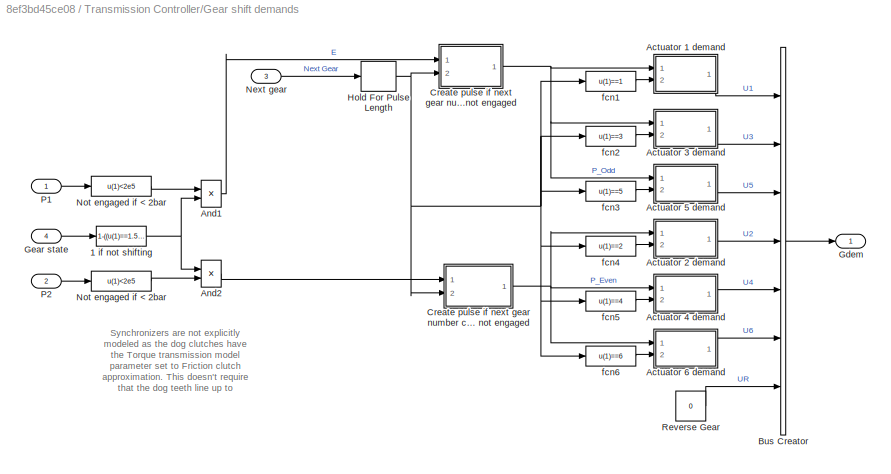
BLOCK [SubSystem] Transmission Controller/Gear shift demands
  Ports = [4, 1]
  RequestExecContextInheritance = off
BLOCK [Fcn] Transmission Controller/Gear shift demands/1 if not shifting
  Expr = 1-((u(1)==1.5)+(u(1)==2.5)+(u(1)==3.5)+(u(1)==4.5)+(u(1)==5.5))
BLOCK [SubSystem] Transmission Controller/Gear shift demands/Actuator 1 demand
  Ports = [2, 1]
  RequestExecContextInheritance = off
BLOCK [Constant] Transmission Controller/Gear shift demands/Actuator 1 demand/Disengage
  Value = -1
BLOCK [Constant] Transmission Controller/Gear shift demands/Actuator 1 demand/Engage
BLOCK [Inport] Transmission Controller/Gear shift demands/Actuator 1 demand/P
  IconDisplay = Port number
BLOCK [Outport] Transmission Controller/Gear shift demands/Actuator 1 demand/Pulse
  IconDisplay = Port number
BLOCK [Switch] Transmission Controller/Gear shift demands/Actuator 1 demand/Pulse sign
  SaturateOnIntegerOverflow = off
  Threshold = 0.5
BLOCK [Product] Transmission Controller/Gear shift demands/Actuator 1 demand/Signed pulse
  Ports = [2, 1]
  RndMeth = Floor
BLOCK [Inport] Transmission Controller/Gear shift demands/Actuator 1 demand/nG
  IconDisplay = Port number
  Port = 2
BLOCK [SubSystem] Transmission Controller/Gear shift demands/Actuator 2 demand
  Ports = [2, 1]
  RequestExecContextInheritance = off
BLOCK [Constant] Transmission Controller/Gear shift demands/Actuator 2 demand/Disengage
  Value = -1
BLOCK [Constant] Transmission Controller/Gear shift demands/Actuator 2 demand/Engage
BLOCK [Inport] Transmission Controller/Gear shift demands/Actuator 2 demand/P
  IconDisplay = Port number
BLOCK [Outport] Transmission Controller/Gear shift demands/Actuator 2 demand/Pulse
  IconDisplay = Port number
BLOCK [Switch] Transmission Controller/Gear shift demands/Actuator 2 demand/Pulse sign
  SaturateOnIntegerOverflow = off
  Threshold = 0.5
BLOCK [Product] Transmission Controller/Gear shift demands/Actuator 2 demand/Signed pulse
  Ports = [2, 1]
  RndMeth = Floor
BLOCK [Inport] Transmission Controller/Gear shift demands/Actuator 2 demand/nG
  IconDisplay = Port number
  Port = 2
BLOCK [SubSystem] Transmission Controller/Gear shift demands/Actuator 3 demand
  Ports = [2, 1]
  RequestExecContextInheritance = off
BLOCK [Constant] Transmission Controller/Gear shift demands/Actuator 3 demand/Disengage
  Value = -1
BLOCK [Constant] Transmission Controller/Gear shift demands/Actuator 3 demand/Engage
BLOCK [Inport] Transmission Controller/Gear shift demands/Actuator 3 demand/P
  IconDisplay = Port number
BLOCK [Outport] Transmission Controller/Gear shift demands/Actuator 3 demand/Pulse
  IconDisplay = Port number
BLOCK [Switch] Transmission Controller/Gear shift demands/Actuator 3 demand/Pulse sign
  SaturateOnIntegerOverflow = off
  Threshold = 0.5
BLOCK [Product] Transmission Controller/Gear shift demands/Actuator 3 demand/Signed pulse
  Ports = [2, 1]
  RndMeth = Floor
BLOCK [Inport] Transmission Controller/Gear shift demands/Actuator 3 demand/nG
  IconDisplay = Port number
  Port = 2
BLOCK [SubSystem] Transmission Controller/Gear shift demands/Actuator 4 demand
  Ports = [2, 1]
  RequestExecContextInheritance = off
BLOCK [Constant] Transmission Controller/Gear shift demands/Actuator 4 demand/Disengage
  Value = -1
BLOCK [Constant] Transmission Controller/Gear shift demands/Actuator 4 demand/Engage
BLOCK [Inport] Transmission Controller/Gear shift demands/Actuator 4 demand/P
  IconDisplay = Port number
BLOCK [Outport] Transmission Controller/Gear shift demands/Actuator 4 demand/Pulse
  IconDisplay = Port number
BLOCK [Switch] Transmission Controller/Gear shift demands/Actuator 4 demand/Pulse sign
  SaturateOnIntegerOverflow = off
  Threshold = 0.5
BLOCK [Product] Transmission Controller/Gear shift demands/Actuator 4 demand/Signed pulse
  Ports = [2, 1]
  RndMeth = Floor
BLOCK [Inport] Transmission Controller/Gear shift demands/Actuator 4 demand/nG
  IconDisplay = Port number
  Port = 2
BLOCK [SubSystem] Transmission Controller/Gear shift demands/Actuator 5 demand
  Ports = [2, 1]
  RequestExecContextInheritance = off
BLOCK [Constant] Transmission Controller/Gear shift demands/Actuator 5 demand/Disengage
  Value = -1
BLOCK [Constant] Transmission Controller/Gear shift demands/Actuator 5 demand/Engage
BLOCK [Inport] Transmission Controller/Gear shift demands/Actuator 5 demand/P
  IconDisplay = Port number
BLOCK [Outport] Transmission Controller/Gear shift demands/Actuator 5 demand/Pulse
  IconDisplay = Port number
BLOCK [Switch] Transmission Controller/Gear shift demands/Actuator 5 demand/Pulse sign
  SaturateOnIntegerOverflow = off
  Threshold = 0.5
BLOCK [Product] Transmission Controller/Gear shift demands/Actuator 5 demand/Signed pulse
  Ports = [2, 1]
  RndMeth = Floor
BLOCK [Inport] Transmission Controller/Gear shift demands/Actuator 5 demand/nG
  IconDisplay = Port number
  Port = 2
BLOCK [SubSystem] Transmission Controller/Gear shift demands/Actuator 6 demand
  Ports = [2, 1]
  RequestExecContextInheritance = off
BLOCK [Constant] Transmission Controller/Gear shift demands/Actuator 6 demand/Disengage
  Value = -1
BLOCK [Constant] Transmission Controller/Gear shift demands/Actuator 6 demand/Engage
BLOCK [Inport] Transmission Controller/Gear shift demands/Actuator 6 demand/P
  IconDisplay = Port number
BLOCK [Outport] Transmission Controller/Gear shift demands/Actuator 6 demand/Pulse
  IconDisplay = Port number
BLOCK [Switch] Transmission Controller/Gear shift demands/Actuator 6 demand/Pulse sign
  SaturateOnIntegerOverflow = off
  Threshold = 0.5
BLOCK [Product] Transmission Controller/Gear shift demands/Actuator 6 demand/Signed pulse
  Ports = [2, 1]
  RndMeth = Floor
BLOCK [Inport] Transmission Controller/Gear shift demands/Actuator 6 demand/nG
  IconDisplay = Port number
  Port = 2
BLOCK [Product] Transmission Controller/Gear shift demands/And1
  Ports = [2, 1]
  RndMeth = Floor
BLOCK [Product] Transmission Controller/Gear shift demands/And2
  Ports = [2, 1]
  RndMeth = Floor
BLOCK [BusCreator] Transmission Controller/Gear shift demands/Bus Creator
  DisplayOption = bar
  InheritFromInputs = on
  Inputs = 7
  Ports = [7, 1]
BLOCK [SubSystem] Transmission Controller/Gear shift demands/Create pulse if next gear number changes and CL1 is not engaged
  Ports = [2, 1]
  RequestExecContextInheritance = off
BLOCK [Delay] Transmission Controller/Gear shift demands/Create pulse if next gear number changes and CL1 is not engaged/0.5s delay
  DelayLength = DCT_Param.Dog_Clutches.Pulse_Length
  InputPortMap = u0
  Ports = [1, 1]
  SampleTime = 0.01
  UserDataPersistent = on
BLOCK [Abs] Transmission Controller/Gear shift demands/Create pulse if next gear number changes and CL1 is not engaged/Abs
BLOCK [Product] Transmission Controller/Gear shift demands/Create pulse if next gear number changes and CL1 is not engaged/Create a 1//2s pulse if not engaged and the next gear number changes
  Ports = [2, 1]
  RndMeth = Floor
BLOCK [Outport] Transmission Controller/Gear shift demands/Create pulse if next gear number changes and CL1 is not engaged/Pulse
  IconDisplay = Port number
BLOCK [RateTransition] Transmission Controller/Gear shift demands/Create pulse if next gear number changes and CL1 is not engaged/Rate Transition
  OutPortSampleTime = 0.01
BLOCK [RateTransition] Transmission Controller/Gear shift demands/Create pulse if next gear number changes and CL1 is not engaged/Rate Transition2
  OutPortSampleTime = 0.01
BLOCK [Sum] Transmission Controller/Gear shift demands/Create pulse if next gear number changes and CL1 is not engaged/Sum2
  IconShape = round
  Inputs = |+-
  Ports = [2, 1]
BLOCK [Saturate] Transmission Controller/Gear shift demands/Create pulse if next gear number changes and CL1 is not engaged/[0,1]
  InputPortMap = u0
  LowerLimit = 0
  Ports = [1, 1]
  UpperLimit = 1
BLOCK [Inport] Transmission Controller/Gear shift demands/Create pulse if next gear number changes and CL1 is not engaged/nG
  IconDisplay = Port number
  Port = 2
BLOCK [Inport] Transmission Controller/Gear shift demands/Create pulse if next gear number changes and CL1 is not engaged/~E
  IconDisplay = Port number
BLOCK [SubSystem] Transmission Controller/Gear shift demands/Create pulse if next gear number changes and CL2 is not engaged
  Ports = [2, 1]
  RequestExecContextInheritance = off
BLOCK [Delay] Transmission Controller/Gear shift demands/Create pulse if next gear number changes and CL2 is not engaged/0.5s delay
  DelayLength = DCT_Param.Dog_Clutches.Pulse_Length
  InputPortMap = u0
  Ports = [1, 1]
  SampleTime = 0.01
  UserDataPersistent = on
BLOCK [Abs] Transmission Controller/Gear shift demands/Create pulse if next gear number changes and CL2 is not engaged/Abs
BLOCK [Product] Transmission Controller/Gear shift demands/Create pulse if next gear number changes and CL2 is not engaged/Create a 1//2s pulse if not engaged and the next gear number changes
  Ports = [2, 1]
  RndMeth = Floor
BLOCK [Outport] Transmission Controller/Gear shift demands/Create pulse if next gear number changes and CL2 is not engaged/Pulse
  IconDisplay = Port number
BLOCK [RateTransition] Transmission Controller/Gear shift demands/Create pulse if next gear number changes and CL2 is not engaged/Rate Transition
  OutPortSampleTime = 0.01
BLOCK [RateTransition] Transmission Controller/Gear shift demands/Create pulse if next gear number changes and CL2 is not engaged/Rate Transition1
  OutPortSampleTime = 0.01
BLOCK [Sum] Transmission Controller/Gear shift demands/Create pulse if next gear number changes and CL2 is not engaged/Sum2
  IconShape = round
  Inputs = |+-
  Ports = [2, 1]
BLOCK [Saturate] Transmission Controller/Gear shift demands/Create pulse if next gear number changes and CL2 is not engaged/[0,1]
  InputPortMap = u0
  LowerLimit = 0
  Ports = [1, 1]
  UpperLimit = 1
BLOCK [Inport] Transmission Controller/Gear shift demands/Create pulse if next gear number changes and CL2 is not engaged/nG
  IconDisplay = Port number
  Port = 2
BLOCK [Inport] Transmission Controller/Gear shift demands/Create pulse if next gear number changes and CL2 is not engaged/~E
  IconDisplay = Port number
BLOCK [Outport] Transmission Controller/Gear shift demands/Gdem
  IconDisplay = Port number
BLOCK [Inport] Transmission Controller/Gear shift demands/Gear state
  IconDisplay = Port number
  Port = 4
BLOCK [ZeroOrderHold] Transmission Controller/Gear shift demands/Hold For Pulse Length
  SampleTime = DCT_Param.Dog_Clutches.Pulse_Length*0.01
BLOCK [Inport] Transmission Controller/Gear shift demands/Next gear
  IconDisplay = Port number
  Port = 3
BLOCK [Fcn] Transmission Controller/Gear shift demands/Not engaged if < 2bar
  Expr = u(1)<2e5
BLOCK [Fcn] Transmission Controller/Gear shift demands/Not engaged if < 2bar 
  Expr = u(1)<2e5
BLOCK [Inport] Transmission Controller/Gear shift demands/P1
  IconDisplay = Port number
BLOCK [Inport] Transmission Controller/Gear shift demands/P2
  IconDisplay = Port number
  Port = 2
BLOCK [Constant] Transmission Controller/Gear shift demands/Reverse Gear
  SampleTime = 0.01
  Value = 0
BLOCK [Fcn] Transmission Controller/Gear shift demands/fcn1
  Expr = u(1)==1
BLOCK [Fcn] Transmission Controller/Gear shift demands/fcn2
  Expr = u(1)==3
BLOCK [Fcn] Transmission Controller/Gear shift demands/fcn3
  Expr = u(1)==5
BLOCK [Fcn] Transmission Controller/Gear shift demands/fcn4
  Expr = u(1)==2
BLOCK [Fcn] Transmission Controller/Gear shift demands/fcn5
  Expr = u(1)==4
BLOCK [Fcn] Transmission Controller/Gear shift demands/fcn6
  Expr = u(1)==6
BLOCK [Goto] Transmission Controller/Goto
  GotoTag = trq_dem
  TagVisibility = global
BLOCK [Mux] Transmission Controller/Mux
  DisplayOption = bar
  Inputs = 2
  Ports = [2, 1]
BLOCK [Outport] Transmission Controller/Pdem
  IconDisplay = Port number
  Port = 2
BLOCK [SubSystem] Transmission Controller/Shift state
  Ports = [5, 5]
  RequestExecContextInheritance = off
BLOCK [Outport] Transmission Controller/Shift state/C1
  IconDisplay = Port number
BLOCK [Outport] Transmission Controller/Shift state/C2
  IconDisplay = Port number
  Port = 2
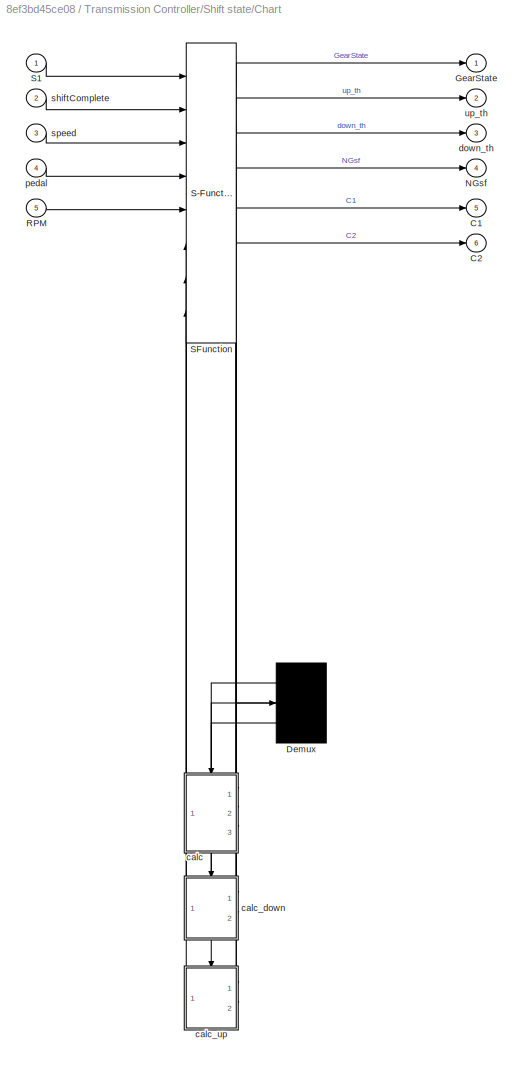
BLOCK [SubSystem] Transmission Controller/Shift state/Chart
  ErrorFcn = Stateflow.Translate.translate
  PermitHierarchicalResolution = ExplicitOnly
  Ports = [5, 6]
  RequestExecContextInheritance = off
  SFBlockType = Chart
  TreatAsAtomicUnit = on
BLOCK [Demux] Transmission Controller/Shift state/Chart/ Demux 
  Outputs = 3
  Ports = [1, 3]
BLOCK [S-Function] Transmission Controller/Shift state/Chart/ SFunction 
  EnableBusSupport = off
  FunctionName = sf_sfun
  PortCounts = [8 14]
  Ports = [8, 14]
  SFcnIsStateOwnerBlock = off
  SFunctionDeploymentMode = off
  Tag = Stateflow S-Function 1
BLOCK [Outport] Transmission Controller/Shift state/Chart/C1
  IconDisplay = Port number
  Port = 5
BLOCK [Outport] Transmission Controller/Shift state/Chart/C2
  IconDisplay = Port number
  Port = 6
BLOCK [Outport] Transmission Controller/Shift state/Chart/GearState
  IconDisplay = Port number
BLOCK [Outport] Transmission Controller/Shift state/Chart/NGsf
  IconDisplay = Port number
  Port = 4
BLOCK [Inport] Transmission Controller/Shift state/Chart/RPM
  IconDisplay = Port number
  Port = 5
BLOCK [Inport] Transmission Controller/Shift state/Chart/S1
  IconDisplay = Port number
BLOCK [SubSystem] Transmission Controller/Shift state/Chart/calc
  Ports = [3, 1, 0, 1]
  PreDeleteFcn = Stateflow.SLINSF.SimulinkMan.removePreDeleteFcn
  RequestExecContextInheritance = off
  UndoDeleteFcn = Stateflow.SLINSF.SimulinkMan.restorePreDeleteFcn
BLOCK [Sum] Transmission Controller/Shift state/Chart/calc/Add1
  InputSameDT = off
  Inputs = +-
  OutDataTypeStr = Inherit: Inherit via internal rule
  Ports = [2, 1]
  SaturateOnIntegerOverflow = off
BLOCK [Sum] Transmission Controller/Shift state/Chart/calc/Add3
  InputSameDT = off
  Inputs = +-
  OutDataTypeStr = Inherit: Inherit via internal rule
  Ports = [2, 1]
  SaturateOnIntegerOverflow = off
BLOCK [Sum] Transmission Controller/Shift state/Chart/calc/Add4
  InputSameDT = off
  Inputs = +-
  OutDataTypeStr = Inherit: Inherit via internal rule
  Ports = [2, 1]
  SaturateOnIntegerOverflow = off
BLOCK [Lookup2D] Transmission Controller/Shift state/Chart/calc/Calculate Downshift Threshold
  ColumnIndex = [2,3,4,5,6]
  InputSameDT = off
  LookUpMeth = Interpolation-Use End Values
  RowIndex = DCT_Param.Shift_Map.Pedal_Positions
  SaturateOnIntegerOverflow = off
  Table = DCT_Param.Shift_Map.Downshift_Speeds
BLOCK [Lookup2D] Transmission Controller/Shift state/Chart/calc/Calculate Upshift Threshold
  ColumnIndex = [1,2,3,4,5]
  InputSameDT = off
  LookUpMeth = Interpolation-Use End Values
  RowIndex = Pedal_Positions
  SaturateOnIntegerOverflow = off
  Table = Upshift_Speeds
BLOCK [Outport] Transmission Controller/Shift state/Chart/calc/SpdThr
  IconDisplay = Port number
BLOCK [TriggerPort] Transmission Controller/Shift state/Chart/calc/f
  CopyFcn = Stateflow.SLINSF.SimulinkMan.removeBlockPreDeleteFcn
  Ports = []
  PreDeleteFcn = Stateflow.SLINSF.SimulinkMan.unsafePredeleteFcn
  TriggerType = function-call
  VariantControl = Variant
BLOCK [Inport] Transmission Controller/Shift state/Chart/calc/gear
  IconDisplay = Port number
BLOCK [Inport] Transmission Controller/Shift state/Chart/calc/pedal
  IconDisplay = Port number
  Port = 2
BLOCK [Inport] Transmission Controller/Shift state/Chart/calc/speed
  IconDisplay = Port number
  Port = 3
BLOCK [SubSystem] Transmission Controller/Shift state/Chart/calc_down
  Ports = [2, 1, 0, 1]
  PreDeleteFcn = Stateflow.SLINSF.SimulinkMan.removePreDeleteFcn
  RequestExecContextInheritance = off
  UndoDeleteFcn = Stateflow.SLINSF.SimulinkMan.restorePreDeleteFcn
BLOCK [Lookup2D] Transmission Controller/Shift state/Chart/calc_down/Calculate Downshift Threshold
  ColumnIndex = [2,3,4,5,6]
  InputSameDT = off
  LookUpMeth = Interpolation-Use End Values
  RowIndex = Pedal_Positions
  SaturateOnIntegerOverflow = off
  Table = Downshift_Speeds
BLOCK [Outport] Transmission Controller/Shift state/Chart/calc_down/down_th
  IconDisplay = Port number
BLOCK [TriggerPort] Transmission Controller/Shift state/Chart/calc_down/f
  CopyFcn = Stateflow.SLINSF.SimulinkMan.removeBlockPreDeleteFcn
  Ports = []
  PreDeleteFcn = Stateflow.SLINSF.SimulinkMan.unsafePredeleteFcn
  TriggerType = function-call
  VariantControl = Variant
BLOCK [Inport] Transmission Controller/Shift state/Chart/calc_down/gear
  IconDisplay = Port number
BLOCK [Inport] Transmission Controller/Shift state/Chart/calc_down/pedal
  IconDisplay = Port number
  Port = 2
BLOCK [SubSystem] Transmission Controller/Shift state/Chart/calc_up
  Ports = [2, 1, 0, 1]
  PreDeleteFcn = Stateflow.SLINSF.SimulinkMan.removePreDeleteFcn
  RequestExecContextInheritance = off
  UndoDeleteFcn = Stateflow.SLINSF.SimulinkMan.restorePreDeleteFcn
BLOCK [Lookup2D] Transmission Controller/Shift state/Chart/calc_up/Calculate Upshift Threshold
  ColumnIndex = [1,2,3,4,5]
  InputSameDT = off
  LookUpMeth = Interpolation-Use End Values
  RowIndex = Pedal_Positions
  SaturateOnIntegerOverflow = off
  Table = Upshift_Speeds
BLOCK [TriggerPort] Transmission Controller/Shift state/Chart/calc_up/f
  CopyFcn = Stateflow.SLINSF.SimulinkMan.removeBlockPreDeleteFcn
  Ports = []
  PreDeleteFcn = Stateflow.SLINSF.SimulinkMan.unsafePredeleteFcn
  TriggerType = function-call
  VariantControl = Variant
BLOCK [Inport] Transmission Controller/Shift state/Chart/calc_up/gear
  IconDisplay = Port number
BLOCK [Inport] Transmission Controller/Shift state/Chart/calc_up/pedal
  IconDisplay = Port number
  Port = 2
BLOCK [Outport] Transmission Controller/Shift state/Chart/calc_up/up_th
  IconDisplay = Port number
BLOCK [Outport] Transmission Controller/Shift state/Chart/down_th
  IconDisplay = Port number
  Port = 3
BLOCK [Inport] Transmission Controller/Shift state/Chart/pedal
  IconDisplay = Port number
  Port = 4
BLOCK [Inport] Transmission Controller/Shift state/Chart/shiftComplete
  IconDisplay = Port number
  Port = 2
BLOCK [Inport] Transmission Controller/Shift state/Chart/speed
  IconDisplay = Port number
  Port = 3
BLOCK [Outport] Transmission Controller/Shift state/Chart/up_th
  IconDisplay = Port number
  Port = 2
BLOCK [Inport] Transmission Controller/Shift state/Cslip
  IconDisplay = Port number
  Port = 4
BLOCK [Demux] Transmission Controller/Shift state/Demux
  DisplayOption = bar
  Outputs = 2
  Ports = [1, 2]
BLOCK [SubSystem] Transmission Controller/Shift state/Enable Clutch
  Ports = [1, 1]
  RequestExecContextInheritance = off
BLOCK [Delay] Transmission Controller/Shift state/Enable Clutch/0.5s delay
  DelayLength = DCT_Param.Dog_Clutches.Pulse_Length
  InputPortMap = u0
  Ports = [1, 1]
  SampleTime = 0.01
  UserDataPersistent = on
BLOCK [Outport] Transmission Controller/Shift state/Enable Clutch/Clutch
  IconDisplay = Port number
BLOCK [RelationalOperator] Transmission Controller/Shift state/Enable Clutch/Relational Operator
  InputSameDT = off
  Operator = ==
  OutDataTypeStr = boolean
  Ports = [2, 1]
BLOCK [ZeroOrderHold] Transmission Controller/Shift state/Enable Clutch/Zero-Order Hold
  SampleTime = DCT_Param.Dog_Clutches.Pulse_Length*0.01
BLOCK [Inport] Transmission Controller/Shift state/Enable Clutch/nG
  IconDisplay = Port number
BLOCK [Inport] Transmission Controller/Shift state/EngSpd
  IconDisplay = Port number
  Port = 3
BLOCK [Outport] Transmission Controller/Shift state/Gear state
  IconDisplay = Port number
  Port = 5
BLOCK [Goto] Transmission Controller/Shift state/Goto1
  GotoTag = G
  TagVisibility = global
BLOCK [Goto] Transmission Controller/Shift state/Goto11
  GotoTag = up_th
  TagVisibility = global
BLOCK [Goto] Transmission Controller/Shift state/Goto12
  GotoTag = down_th
  TagVisibility = global
BLOCK [Goto] Transmission Controller/Shift state/Goto2
  GotoTag = S1
  TagVisibility = global
BLOCK [Goto] Transmission Controller/Shift state/Goto3
  GotoTag = S2
  TagVisibility = global
BLOCK [Goto] Transmission Controller/Shift state/Goto4
  GotoTag = EngSpd_rpm
  TagVisibility = global
BLOCK [Goto] Transmission Controller/Shift state/Goto5
  GotoTag = nG
  TagVisibility = global
BLOCK [Outport] Transmission Controller/Shift state/Launch
  IconDisplay = Port number
  Port = 3
BLOCK [Fcn] Transmission Controller/Shift state/Launch if 0.5
  Expr = u(1)==0.5
BLOCK [Outport] Transmission Controller/Shift state/Next gear
  IconDisplay = Port number
  Port = 4
BLOCK [SubSystem] Transmission Controller/Shift state/Permit Clutch Change
  Ports = [2, 2, 1]
  RequestExecContextInheritance = off
  TreatAsAtomicUnit = on
BLOCK [Outport] Transmission Controller/Shift state/Permit Clutch Change/C1
  IconDisplay = Port number
BLOCK [Inport] Transmission Controller/Shift state/Permit Clutch Change/C1_Cmd
  IconDisplay = Port number
BLOCK [Outport] Transmission Controller/Shift state/Permit Clutch Change/C2
  IconDisplay = Port number
  Port = 2
BLOCK [Inport] Transmission Controller/Shift state/Permit Clutch Change/C2_Cmd
  IconDisplay = Port number
  Port = 2
BLOCK [EnablePort] Transmission Controller/Shift state/Permit Clutch Change/Enable
  Ports = []
BLOCK [RateTransition] Transmission Controller/Shift state/Rate Transition
  OutPortSampleTime = 0.01
BLOCK [Inport] Transmission Controller/Shift state/Shift complete
  IconDisplay = Port number
  Port = 5
BLOCK [Inport] Transmission Controller/Shift state/VehSpd
  IconDisplay = Port number
  Port = 2
BLOCK [Inport] Transmission Controller/Shift state/pedal
  IconDisplay = Port number
BLOCK [UnitDelay] Transmission Controller/Shift state/z1
  HasFrameUpgradeWarning = on
  SampleTime = 0.01
BLOCK [Outport] Transmission Controller/Tdem
  IconDisplay = Port number
  Port = 3
BLOCK [Gain] Transmission Controller/Tmax
  Gain = 92e3/(2*pi*5500/60)
BLOCK [Inport] Transmission Controller/VehSpd
  IconDisplay = Port number
  Port = 2
BLOCK [Saturate] Transmission Controller/[0,1]
  InputPortMap = u0
  LowerLimit = 0
  Ports = [1, 1]
  UpperLimit = 1
BLOCK [SubSystem] Vehicle Dynamics
  AttributesFormatString = %<ActiveVariant>
  LabelModeActiveChoice = Simple
  Ports = [0, 1, 0, 0, 0, 1]
  RequestExecContextInheritance = off
  Variant = on
  VariantControlMode = Label
BLOCK [PMIOPort] Vehicle Dynamics/Drive Shaft
  Side = Left
BLOCK [Reference] Vehicle Dynamics/Full  REF=DCT_Vehicle_Dynamics_Lib/Full
  Ports = [0, 1, 0, 0, 0, 1]
  SourceBlock = DCT_Vehicle_Dynamics_Lib/Full
BLOCK [Reference] Vehicle Dynamics/Simple  REF=DCT_Vehicle_Dynamics_Lib/Simple
  Ports = [0, 1, 0, 0, 0, 1]
  SourceBlock = DCT_Vehicle_Dynamics_Lib/Simple
  SourceType = Rigid vehicle model
BLOCK [Outport] Vehicle Dynamics/VehSpd
  IconDisplay = Port number
BLOCK [Scope] Vehicle Speed
  ExtModeUploadOption = log
  Floating = off
  NumInputPorts = 1
  Ports = [1]
  ScopeSpecificationString = Simulink.scopes.TimeScopeBlockCfg('CurrentConfiguration', extmgr.ConfigurationSet(extmgr.Configuration('Core','General UI',true),extmgr.Configuration('Core','Source UI',true),extmgr.Configuration('Sources','WiredSimulink',true,'DataLoggingVariableName','VehSpd','DataLoggingSaveFormat','StructureWithTime','DataLoggingMaxPoints','50000','DataLoggingDecimation','1'),extmgr.Configuration('Visuals','Ti...<+1694ch>
BLOCK [UnitDelay] z1
  HasFrameUpgradeWarning = on
  SampleTime = 0.01
BLOCK [UnitDelay] z2
  HasFrameUpgradeWarning = on
  SampleTime = 0.01
ANNOTATION (root): 1. Parameter values: Initial , Tuned 2. Launch Parameter Estimation tool 3. Explore simulation results using sscexplore
ANNOTATION (root): Tuning Abstract Transmission Model
ANNOTATION Fuel Economy: Fuel Economy
ANNOTATION Transmission Controller/Gear shift demands: Synchronizers are not explicitly modeled as the dog clutches have the Torque transmission model parameter set to Friction clutch approximation. This doesn't require that the dog teeth line up to engage.
ANNOTATION Transmission Controller/Shift state/Chart/calc: Determine if next gear will be higher or lower than current gear
ANNOTATION Vehicle Dynamics: Variant Subsystems
LINE Abstracted/Clutches/MinMax:1 -> Abstracted/Clutches/Odd Clutch Actuator:1
LINE Abstracted/Clutches/Mux:1 -> Abstracted/Clutches/Cslip:1
LINE Abstracted/Clutches/Odd Clutch Actuator/Pdem:1 -> Abstracted/Clutches/Odd Clutch Actuator/Pressure controller time constant:1
LINE Abstracted/Clutches/Odd Clutch Actuator/Pressure controller time constant:1 -> Abstracted/Clutches/Odd Clutch Actuator/Simulink-PS Converter:1
LINE Abstracted/Clutches/Pdem:1 -> Abstracted/Clutches/MinMax:1
LINE Abstracted/Clutches/Slip Sensor 2:1 -> Abstracted/Clutches/Mux:2
LINE Abstracted/Clutches/Slip sensor 1/PS-Simulink Converter3:1 -> Abstracted/Clutches/Slip sensor 1/Zero-Order Hold:1
LINE Abstracted/Clutches/Slip sensor 1/Zero-Order Hold:1 -> Abstracted/Clutches/Slip sensor 1/S1:1
LINE Abstracted/Clutches/Slip sensor 1:1 -> Abstracted/Clutches/Mux:1
LINE Abstracted/Clutches:1 -> Abstracted/Cslip:1
LINE Abstracted/G:1 -> Abstracted/Gears:1
LINE Abstracted/Gears/Bus Selector:1 -> Abstracted/Gears/Goto:1
LINE Abstracted/Gears/Bus Selector:2 -> Abstracted/Gears/Goto1:1
LINE Abstracted/Gears/Bus Selector:3 -> Abstracted/Gears/Goto2:1
LINE Abstracted/Gears/Bus Selector:4 -> Abstracted/Gears/Goto3:1
LINE Abstracted/Gears/Bus Selector:5 -> Abstracted/Gears/Goto4:1
LINE Abstracted/Gears/Bus Selector:6 -> Abstracted/Gears/Goto5:1
LINE Abstracted/Gears/Bus Selector:7 -> Abstracted/Gears/Goto6:1
LINE Abstracted/Gears/From1:1 -> Abstracted/Gears/Ratio Selection:2
LINE Abstracted/Gears/From9:1 -> Abstracted/Gears/Ratio Selection:1
LINE Abstracted/Gears/G:1 -> Abstracted/Gears/Bus Selector:1
LINE Abstracted/Gears/Ratio Selection/Constant1:1 -> Abstracted/Gears/Ratio Selection/Index Vector:3
LINE Abstracted/Gears/Ratio Selection/Constant2:1 -> Abstracted/Gears/Ratio Selection/Index Vector:4
LINE Abstracted/Gears/Ratio Selection/Constant3:1 -> Abstracted/Gears/Ratio Selection/Index Vector:2
LINE Abstracted/Gears/Ratio Selection/Constant4:1 -> Abstracted/Gears/Ratio Selection/Index Vector:5
LINE Abstracted/Gears/Ratio Selection/Constant5:1 -> Abstracted/Gears/Ratio Selection/Index Vector:6
LINE Abstracted/Gears/Ratio Selection/Constant6:1 -> Abstracted/Gears/Ratio Selection/Index Vector:7
LINE Abstracted/Gears/Ratio Selection/Constant7:1 -> Abstracted/Gears/Ratio Selection/Index Vector:8
LINE Abstracted/Gears/Ratio Selection/Constant:1 -> Abstracted/Gears/Ratio Selection/Delay to match detailed model:2
LINE Abstracted/Gears/Ratio Selection/Delay to match detailed model:1 -> Abstracted/Gears/Ratio Selection/Index Vector:1
NET Abstracted/Gears/Ratio Selection/Gear:1 -> Abstracted/Gears/Ratio Selection/Relational Operator:1, Abstracted/Gears/Ratio Selection/Rounding Function:1, Abstracted/Gears/Ratio Selection/Switch:1
LINE Abstracted/Gears/Ratio Selection/Index Vector:1 -> Abstracted/Gears/Ratio Selection/Lag Filter with IC:1
NET Abstracted/Gears/Ratio Selection/Lag Filter with IC/Gain:1 -> Abstracted/Gears/Ratio Selection/Lag Filter with IC/Out:1, Abstracted/Gears/Ratio Selection/Lag Filter with IC/Sum:2
LINE Abstracted/Gears/Ratio Selection/Lag Filter with IC/In:1 -> Abstracted/Gears/Ratio Selection/Lag Filter with IC/Sum:1
LINE Abstracted/Gears/Ratio Selection/Lag Filter with IC/Integrator:1 -> Abstracted/Gears/Ratio Selection/Lag Filter with IC/Gain:1
LINE Abstracted/Gears/Ratio Selection/Lag Filter with IC/Sum:1 -> Abstracted/Gears/Ratio Selection/Lag Filter with IC/Integrator:1
LINE Abstracted/Gears/Ratio Selection/Lag Filter with IC:1 -> Abstracted/Gears/Ratio Selection/Ratio:1
LINE Abstracted/Gears/Ratio Selection/Relational Operator:1 -> Abstracted/Gears/Ratio Selection/Switch:2
LINE Abstracted/Gears/Ratio Selection/Rounding Function:1 -> Abstracted/Gears/Ratio Selection/Relational Operator:2
LINE Abstracted/Gears/Ratio Selection/Switch:1 -> Abstracted/Gears/Ratio Selection/Delay to match detailed model:1
LINE Abstracted/Gears/Ratio Selection/nextGear:1 -> Abstracted/Gears/Ratio Selection/Switch:3
LINE Abstracted/Gears/Ratio Selection:1 -> Abstracted/Gears/Simulink-PS Converter:1
LINE Abstracted/Pdem:1 -> Abstracted/Clutches:1
LINE Abstracted:1 -> z1:1
LINE From Workspace:1 -> Mux:2
LINE From:1 -> Mux:1
LINE Fuel Economy/Calculate Fuel Economy/1:1 -> Fuel Economy/Calculate Fuel Economy/km//l:2
NET Fuel Economy/Calculate Fuel Economy/Cumulative Distance Km:1 -> Fuel Economy/Calculate Fuel Economy/Km to miles:1, Fuel Economy/Calculate Fuel Economy/L//Km:1
LINE Fuel Economy/Calculate Fuel Economy/Cumulative Gal:1 -> Fuel Economy/Calculate Fuel Economy/Divide1:2
NET Fuel Economy/Calculate Fuel Economy/Cumulative L:1 -> Fuel Economy/Calculate Fuel Economy/Fuel Used (L):1, Fuel Economy/Calculate Fuel Economy/Goto:1, Fuel Economy/Calculate Fuel Economy/L//Km:2, Fuel Economy/Calculate Fuel Economy/To Workspace:1
LINE Fuel Economy/Calculate Fuel Economy/Divide1:1 -> Fuel Economy/Calculate Fuel Economy/MPG:1
NET Fuel Economy/Calculate Fuel Economy/Divide:1 -> Fuel Economy/Calculate Fuel Economy/m^3 to L:1, Fuel Economy/Calculate Fuel Economy/m^3 to gal:1
LINE Fuel Economy/Calculate Fuel Economy/Fuel Flow g//s:1 -> Fuel Economy/Calculate Fuel Economy/g//s to Kg//s:1
LINE Fuel Economy/Calculate Fuel Economy/Gasoline Density Kg//m^3:1 -> Fuel Economy/Calculate Fuel Economy/Divide:2
LINE Fuel Economy/Calculate Fuel Economy/Km to miles:1 -> Fuel Economy/Calculate Fuel Economy/Divide1:1
LINE Fuel Economy/Calculate Fuel Economy/Kph to Kps:1 -> Fuel Economy/Calculate Fuel Economy/Cumulative Distance Km:1
LINE Fuel Economy/Calculate Fuel Economy/Kph:1 -> Fuel Economy/Calculate Fuel Economy/Kph to Kps:1
LINE Fuel Economy/Calculate Fuel Economy/L//Km to L//100Km:1 -> Fuel Economy/Calculate Fuel Economy/Liter//100Km:1
NET Fuel Economy/Calculate Fuel Economy/L//Km:1 -> Fuel Economy/Calculate Fuel Economy/L//Km to L//100Km:1, Fuel Economy/Calculate Fuel Economy/km//l:1
LINE Fuel Economy/Calculate Fuel Economy/g//s to Kg//s:1 -> Fuel Economy/Calculate Fuel Economy/Divide:1
LINE Fuel Economy/Calculate Fuel Economy/km//l:1 -> Fuel Economy/Calculate Fuel Economy/Km//Liter:1
LINE Fuel Economy/Calculate Fuel Economy/m^3 to L:1 -> Fuel Economy/Calculate Fuel Economy/Cumulative L:1
LINE Fuel Economy/Calculate Fuel Economy/m^3 to gal:1 -> Fuel Economy/Calculate Fuel Economy/Cumulative Gal:1
LINE Fuel Economy/Calculate Fuel Economy:1 -> Fuel Economy/(L//100 km):1
LINE Fuel Economy/Calculate Fuel Economy:2 -> Fuel Economy/(km//L):1
LINE Fuel Economy/Calculate Fuel Economy:3 -> Fuel Economy/(MPG):1
LINE Fuel Economy/Calculate Fuel Economy:4 -> Fuel Economy/Total Fuel Used (L):1
LINE Fuel Economy/From1:1 -> Fuel Economy/Calculate Fuel Economy:1
NET Fuel Economy/From2:1 -> Fuel Economy/Calculate Fuel Economy:2, Fuel Economy/Fuel Flow:1
LINE Generic:1 -> Transmission Controller:4
LINE Mux:1 -> Engine RPM:1
LINE Scopes/From13:1 -> Scopes/Mux3:1
LINE Scopes/From14:1 -> Scopes/Mux3:2
LINE Scopes/From15:1 -> Scopes/Clutch_Pressures:1
LINE Scopes/From1:1 -> Scopes/Normalized throttle:1
LINE Scopes/From2:1 -> Scopes/Rate Transition:1
LINE Scopes/From3:1 -> Scopes/Mux:2
LINE Scopes/From4:1 -> Scopes/Mux1:1
LINE Scopes/From5:1 -> Scopes/Mux1:2
LINE Scopes/From6:1 -> Scopes/Gear:1
LINE Scopes/From7:1 -> Scopes/Vehicle speed:1
LINE Scopes/From8:1 -> Scopes/Tire slip:1
LINE Scopes/From9:1 -> Scopes/Engine:2
LINE Scopes/From:1 -> Scopes/Engine:1
LINE Scopes/Mux1:1 -> Scopes/Gearbox shaft slip (RPM):1
LINE Scopes/Mux3:1 -> Scopes/Clutch_Pressures:2
LINE Scopes/Mux:1 -> Scopes/Demanded & achieved torques (N-m):1
LINE Scopes/Rate Transition:1 -> Scopes/Mux:1
LINE Speed Demand/10-15 mode :1 -> Speed Demand/Multiport Switch:6
LINE Speed Demand/FTP75 Transient:1 -> Speed Demand/Multiport Switch:9
LINE Speed Demand/FTP75 short:1 -> Speed Demand/Multiport Switch:8
LINE Speed Demand/FTP75:1 -> Speed Demand/Multiport Switch:5
LINE Speed Demand/Multiport Switch:1 -> Speed Demand/Speed Command:1
LINE Speed Demand/Select Cycle:1 -> Speed Demand/Multiport Switch:1
LINE Speed Demand/Urban Cycle 1:1 -> Speed Demand/Multiport Switch:2
LINE Speed Demand/Urban Cycle 2:1 -> Speed Demand/Multiport Switch:3
LINE Speed Demand/Urban Cycle 3:1 -> Speed Demand/Multiport Switch:4
LINE Speed Demand/Wide Open Throttle:1 -> Speed Demand/Multiport Switch:7
LINE Speed Demand:1 -> Transmission Controller:3
LINE Transmission Controller/Clutch Pressure Control/C1:1 -> Transmission Controller/Clutch Pressure Control/Clutch 1 Pressure Gears 2 through max:2
LINE Transmission Controller/Clutch Pressure Control/C2:1 -> Transmission Controller/Clutch Pressure Control/Clutch 2 Pressure:1
LINE Transmission Controller/Clutch Pressure Control/Clutch 1 Pressure Gears 2 through max/C1:1 -> Transmission Controller/Clutch Pressure Control/Clutch 1 Pressure Gears 2 through max/MinMax:2
LINE Transmission Controller/Clutch Pressure Control/Clutch 1 Pressure Gears 2 through max/Enable CL2:1 -> Transmission Controller/Clutch Pressure Control/Clutch 1 Pressure Gears 2 through max/Switch2:3
LINE Transmission Controller/Clutch Pressure Control/Clutch 1 Pressure Gears 2 through max/Launch:1 -> Transmission Controller/Clutch Pressure Control/Clutch 1 Pressure Gears 2 through max/MinMax:1
LINE Transmission Controller/Clutch Pressure Control/Clutch 1 Pressure Gears 2 through max/Max Lock Pressure2:1 -> Transmission Controller/Clutch Pressure Control/Clutch 1 Pressure Gears 2 through max/Switch2:1
LINE Transmission Controller/Clutch Pressure Control/Clutch 1 Pressure Gears 2 through max/Max Unlock Pressure:1 -> Transmission Controller/Clutch Pressure Control/Clutch 1 Pressure Gears 2 through max/Select Ramp Factor:3
LINE Transmission Controller/Clutch Pressure Control/Clutch 1 Pressure Gears 2 through max/Min Lock Pressure:1 -> Transmission Controller/Clutch Pressure Control/Clutch 1 Pressure Gears 2 through max/Select Ramp Factor:1
NET Transmission Controller/Clutch Pressure Control/Clutch 1 Pressure Gears 2 through max/MinMax:1 -> Transmission Controller/Clutch Pressure Control/Clutch 1 Pressure Gears 2 through max/Ramp Pressure:1, Transmission Controller/Clutch Pressure Control/Clutch 1 Pressure Gears 2 through max/Select Ramp Factor:2
LINE Transmission Controller/Clutch Pressure Control/Clutch 1 Pressure Gears 2 through max/Ramp Max:1 -> Transmission Controller/Clutch Pressure Control/Clutch 1 Pressure Gears 2 through max/Enable CL2:1
NET Transmission Controller/Clutch Pressure Control/Clutch 1 Pressure Gears 2 through max/Ramp Pressure:1 -> Transmission Controller/Clutch Pressure Control/Clutch 1 Pressure Gears 2 through max/Ramp Max:1, Transmission Controller/Clutch Pressure Control/Clutch 1 Pressure Gears 2 through max/Shift completed:1
LINE Transmission Controller/Clutch Pressure Control/Clutch 1 Pressure Gears 2 through max/Select Ramp Factor:1 -> Transmission Controller/Clutch Pressure Control/Clutch 1 Pressure Gears 2 through max/Enable CL2:2
NET Transmission Controller/Clutch Pressure Control/Clutch 1 Pressure Gears 2 through max/Shift completed:1 -> Transmission Controller/Clutch Pressure Control/Clutch 1 Pressure Gears 2 through max/C1 Lock:1, Transmission Controller/Clutch Pressure Control/Clutch 1 Pressure Gears 2 through max/Switch2:2
LINE Transmission Controller/Clutch Pressure Control/Clutch 1 Pressure Gears 2 through max/Switch2:1 -> Transmission Controller/Clutch Pressure Control/Clutch 1 Pressure Gears 2 through max/P1_2_max:1
LINE Transmission Controller/Clutch Pressure Control/Clutch 1 Pressure Gears 2 through max:1 -> Transmission Controller/Clutch Pressure Control/Clutch 1 Pressure Launch:3
LINE Transmission Controller/Clutch Pressure Control/Clutch 1 Pressure Gears 2 through max:2 -> Transmission Controller/Clutch Pressure Control/Sum12:1
LINE Transmission Controller/Clutch Pressure Control/Clutch 1 Pressure Launch/1//(0.18s+1) to allow for engine lag:1 -> Transmission Controller/Clutch Pressure Control/Clutch 1 Pressure Launch/Inverse clutch model:1
LINE Transmission Controller/Clutch Pressure Control/Clutch 1 Pressure Launch/Inverse clutch model/Trq2P:1 -> Transmission Controller/Clutch Pressure Control/Clutch 1 Pressure Launch/Inverse clutch model/P:1
LINE Transmission Controller/Clutch Pressure Control/Clutch 1 Pressure Launch/Inverse clutch model/Trq:1 -> Transmission Controller/Clutch Pressure Control/Clutch 1 Pressure Launch/Inverse clutch model/Trq2P:1
LINE Transmission Controller/Clutch Pressure Control/Clutch 1 Pressure Launch/Inverse clutch model:1 -> Transmission Controller/Clutch Pressure Control/Clutch 1 Pressure Launch/Switch5:1
LINE Transmission Controller/Clutch Pressure Control/Clutch 1 Pressure Launch/Launch:1 -> Transmission Controller/Clutch Pressure Control/Clutch 1 Pressure Launch/Switch5:2
LINE Transmission Controller/Clutch Pressure Control/Clutch 1 Pressure Launch/P1_2_max:1 -> Transmission Controller/Clutch Pressure Control/Clutch 1 Pressure Launch/Switch5:3
LINE Transmission Controller/Clutch Pressure Control/Clutch 1 Pressure Launch/Pedal:1 -> Transmission Controller/Clutch Pressure Control/Clutch 1 Pressure Launch/Tmax:1
LINE Transmission Controller/Clutch Pressure Control/Clutch 1 Pressure Launch/Switch5:1 -> Transmission Controller/Clutch Pressure Control/Clutch 1 Pressure Launch/P1_dem:1
LINE Transmission Controller/Clutch Pressure Control/Clutch 1 Pressure Launch/Tmax:1 -> Transmission Controller/Clutch Pressure Control/Clutch 1 Pressure Launch/1//(0.18s+1) to allow for engine lag:1
NET Transmission Controller/Clutch Pressure Control/Clutch 1 Pressure Launch:1 -> Transmission Controller/Clutch Pressure Control/Goto1:1, Transmission Controller/Clutch Pressure Control/P1_dem:1
LINE Transmission Controller/Clutch Pressure Control/Clutch 2 Pressure/C2:1 -> Transmission Controller/Clutch Pressure Control/Clutch 2 Pressure/Rate Transition:1
LINE Transmission Controller/Clutch Pressure Control/Clutch 2 Pressure/Enable CL:1 -> Transmission Controller/Clutch Pressure Control/Clutch 2 Pressure/Switch4:3
LINE Transmission Controller/Clutch Pressure Control/Clutch 2 Pressure/Max Lock Pressure:1 -> Transmission Controller/Clutch Pressure Control/Clutch 2 Pressure/Switch4:1
LINE Transmission Controller/Clutch Pressure Control/Clutch 2 Pressure/Max Unlock Pressure:1 -> Transmission Controller/Clutch Pressure Control/Clutch 2 Pressure/Select Ramp Factor:3
LINE Transmission Controller/Clutch Pressure Control/Clutch 2 Pressure/Min Lock Pressure:1 -> Transmission Controller/Clutch Pressure Control/Clutch 2 Pressure/Select Ramp Factor:1
LINE Transmission Controller/Clutch Pressure Control/Clutch 2 Pressure/Ramp Max1:1 -> Transmission Controller/Clutch Pressure Control/Clutch 2 Pressure/Enable CL:1
NET Transmission Controller/Clutch Pressure Control/Clutch 2 Pressure/Ramp Pressure:1 -> Transmission Controller/Clutch Pressure Control/Clutch 2 Pressure/Ramp Max1:1, Transmission Controller/Clutch Pressure Control/Clutch 2 Pressure/Shift completed:1
NET Transmission Controller/Clutch Pressure Control/Clutch 2 Pressure/Rate Transition:1 -> Transmission Controller/Clutch Pressure Control/Clutch 2 Pressure/Ramp Pressure:1, Transmission Controller/Clutch Pressure Control/Clutch 2 Pressure/Select Ramp Factor:2
LINE Transmission Controller/Clutch Pressure Control/Clutch 2 Pressure/Select Ramp Factor:1 -> Transmission Controller/Clutch Pressure Control/Clutch 2 Pressure/Enable CL:2
NET Transmission Controller/Clutch Pressure Control/Clutch 2 Pressure/Shift completed:1 -> Transmission Controller/Clutch Pressure Control/Clutch 2 Pressure/C2 Lock:1, Transmission Controller/Clutch Pressure Control/Clutch 2 Pressure/Switch4:2
LINE Transmission Controller/Clutch Pressure Control/Clutch 2 Pressure/Switch4:1 -> Transmission Controller/Clutch Pressure Control/Clutch 2 Pressure/P2_dem:1
LINE Transmission Controller/Clutch Pressure Control/Clutch 2 Pressure:1 -> Transmission Controller/Clutch Pressure Control/Sum12:2
NET Transmission Controller/Clutch Pressure Control/Clutch 2 Pressure:2 -> Transmission Controller/Clutch Pressure Control/Goto2:1, Transmission Controller/Clutch Pressure Control/P2_dem:1
NET Transmission Controller/Clutch Pressure Control/Detect Rise Positive:1 -> Transmission Controller/Clutch Pressure Control/Goto5:1, Transmission Controller/Clutch Pressure Control/Shift_complete:1
NET Transmission Controller/Clutch Pressure Control/Launch:1 -> Transmission Controller/Clutch Pressure Control/Clutch 1 Pressure Gears 2 through max:1, Transmission Controller/Clutch Pressure Control/Clutch 1 Pressure Launch:2
LINE Transmission Controller/Clutch Pressure Control/Pedal:1 -> Transmission Controller/Clutch Pressure Control/Clutch 1 Pressure Launch:1
LINE Transmission Controller/Clutch Pressure Control/Sum12:1 -> Transmission Controller/Clutch Pressure Control/Detect Rise Positive:1
LINE Transmission Controller/Clutch Pressure Control:1 -> Transmission Controller/Shift state:5
NET Transmission Controller/Clutch Pressure Control:2 -> Transmission Controller/Gear shift demands:1, Transmission Controller/Mux:1
NET Transmission Controller/Clutch Pressure Control:3 -> Transmission Controller/Gear shift demands:2, Transmission Controller/Mux:2
LINE Transmission Controller/CmdSpd:1 -> Transmission Controller/Driver:1
LINE Transmission Controller/Cslip:1 -> Transmission Controller/Shift state:4
LINE Transmission Controller/Driver/Add1:1 -> Transmission Controller/Driver/PID Controller:1
NET Transmission Controller/Driver/Cmd:1 -> Transmission Controller/Driver/Add1:1, Transmission Controller/Driver/Mux:1
LINE Transmission Controller/Driver/Dead Zone:1 -> Transmission Controller/Driver/Open Loop Tests:2
LINE Transmission Controller/Driver/Filter:1 -> Transmission Controller/Driver/Tmax:1
LINE Transmission Controller/Driver/Gain2:1 -> Transmission Controller/Driver/[-inf,0]:1
LINE Transmission Controller/Driver/Mux:1 -> Transmission Controller/Driver/Driver:1
LINE Transmission Controller/Driver/Open Loop Tests/Cmd_Br:1 -> Transmission Controller/Driver/Open Loop Tests/Open Loop Brake:3
LINE Transmission Controller/Driver/Open Loop Tests/Cmd_Pd:1 -> Transmission Controller/Driver/Open Loop Tests/Open Loop Throttle:3
NET Transmission Controller/Driver/Open Loop Tests/Compare To Constant:1 -> Transmission Controller/Driver/Open Loop Tests/Open Loop Brake:2, Transmission Controller/Driver/Open Loop Tests/Open Loop Throttle:2
LINE Transmission Controller/Driver/Open Loop Tests/Demux:1 -> Transmission Controller/Driver/Open Loop Tests/Open Loop Brake:1
LINE Transmission Controller/Driver/Open Loop Tests/Demux:2 -> Transmission Controller/Driver/Open Loop Tests/Open Loop Throttle:1
LINE Transmission Controller/Driver/Open Loop Tests/Open Loop Brake:1 -> Transmission Controller/Driver/Open Loop Tests/Brake:1
LINE Transmission Controller/Driver/Open Loop Tests/Open Loop Throttle:1 -> Transmission Controller/Driver/Open Loop Tests/Pedal:1
LINE Transmission Controller/Driver/Open Loop Tests/Select Cycle:1 -> Transmission Controller/Driver/Open Loop Tests/Compare To Constant:1
LINE Transmission Controller/Driver/Open Loop Tests/Step:1 -> Transmission Controller/Driver/Open Loop Tests/Demux:1
NET Transmission Controller/Driver/Open Loop Tests:1 -> Transmission Controller/Driver/Driver:3, Transmission Controller/Driver/Goto1:1
NET Transmission Controller/Driver/Open Loop Tests:2 -> Transmission Controller/Driver/Acc:1, Transmission Controller/Driver/Driver:2
NET Transmission Controller/Driver/PID Controller:1 -> Transmission Controller/Driver/Filter:1, Transmission Controller/Driver/Gain2:1
LINE Transmission Controller/Driver/Rate Transition:1 -> Transmission Controller/Driver/Mux:2
NET Transmission Controller/Driver/Spd:1 -> Transmission Controller/Driver/Add1:2, Transmission Controller/Driver/Rate Transition:1
LINE Transmission Controller/Driver/Tmax:1 -> Transmission Controller/Driver/[0,1]:1
LINE Transmission Controller/Driver/[-inf,0]:1 -> Transmission Controller/Driver/Open Loop Tests:1
LINE Transmission Controller/Driver/[0,1]:1 -> Transmission Controller/Driver/Dead Zone:1
LINE Transmission Controller/Driver:1 -> Transmission Controller/[0,1]:1
LINE Transmission Controller/EngSpd:1 -> Transmission Controller/Shift state:3
NET Transmission Controller/Gear shift demands/1 if not shifting:1 -> Transmission Controller/Gear shift demands/And1:2, Transmission Controller/Gear shift demands/And2:1
LINE Transmission Controller/Gear shift demands/Actuator 1 demand/Disengage:1 -> Transmission Controller/Gear shift demands/Actuator 1 demand/Pulse sign:3
LINE Transmission Controller/Gear shift demands/Actuator 1 demand/Engage:1 -> Transmission Controller/Gear shift demands/Actuator 1 demand/Pulse sign:1
LINE Transmission Controller/Gear shift demands/Actuator 1 demand/P:1 -> Transmission Controller/Gear shift demands/Actuator 1 demand/Signed pulse:1
LINE Transmission Controller/Gear shift demands/Actuator 1 demand/Pulse sign:1 -> Transmission Controller/Gear shift demands/Actuator 1 demand/Signed pulse:2
LINE Transmission Controller/Gear shift demands/Actuator 1 demand/Signed pulse:1 -> Transmission Controller/Gear shift demands/Actuator 1 demand/Pulse:1
LINE Transmission Controller/Gear shift demands/Actuator 1 demand/nG:1 -> Transmission Controller/Gear shift demands/Actuator 1 demand/Pulse sign:2
LINE Transmission Controller/Gear shift demands/Actuator 1 demand:1 -> Transmission Controller/Gear shift demands/Bus Creator:1
LINE Transmission Controller/Gear shift demands/Actuator 2 demand/Disengage:1 -> Transmission Controller/Gear shift demands/Actuator 2 demand/Pulse sign:3
LINE Transmission Controller/Gear shift demands/Actuator 2 demand/Engage:1 -> Transmission Controller/Gear shift demands/Actuator 2 demand/Pulse sign:1
LINE Transmission Controller/Gear shift demands/Actuator 2 demand/P:1 -> Transmission Controller/Gear shift demands/Actuator 2 demand/Signed pulse:1
LINE Transmission Controller/Gear shift demands/Actuator 2 demand/Pulse sign:1 -> Transmission Controller/Gear shift demands/Actuator 2 demand/Signed pulse:2
LINE Transmission Controller/Gear shift demands/Actuator 2 demand/Signed pulse:1 -> Transmission Controller/Gear shift demands/Actuator 2 demand/Pulse:1
LINE Transmission Controller/Gear shift demands/Actuator 2 demand/nG:1 -> Transmission Controller/Gear shift demands/Actuator 2 demand/Pulse sign:2
LINE Transmission Controller/Gear shift demands/Actuator 2 demand:1 -> Transmission Controller/Gear shift demands/Bus Creator:4
LINE Transmission Controller/Gear shift demands/Actuator 3 demand/Disengage:1 -> Transmission Controller/Gear shift demands/Actuator 3 demand/Pulse sign:3
LINE Transmission Controller/Gear shift demands/Actuator 3 demand/Engage:1 -> Transmission Controller/Gear shift demands/Actuator 3 demand/Pulse sign:1
LINE Transmission Controller/Gear shift demands/Actuator 3 demand/P:1 -> Transmission Controller/Gear shift demands/Actuator 3 demand/Signed pulse:1
LINE Transmission Controller/Gear shift demands/Actuator 3 demand/Pulse sign:1 -> Transmission Controller/Gear shift demands/Actuator 3 demand/Signed pulse:2
LINE Transmission Controller/Gear shift demands/Actuator 3 demand/Signed pulse:1 -> Transmission Controller/Gear shift demands/Actuator 3 demand/Pulse:1
LINE Transmission Controller/Gear shift demands/Actuator 3 demand/nG:1 -> Transmission Controller/Gear shift demands/Actuator 3 demand/Pulse sign:2
LINE Transmission Controller/Gear shift demands/Actuator 3 demand:1 -> Transmission Controller/Gear shift demands/Bus Creator:2
LINE Transmission Controller/Gear shift demands/Actuator 4 demand/Disengage:1 -> Transmission Controller/Gear shift demands/Actuator 4 demand/Pulse sign:3
LINE Transmission Controller/Gear shift demands/Actuator 4 demand/Engage:1 -> Transmission Controller/Gear shift demands/Actuator 4 demand/Pulse sign:1
LINE Transmission Controller/Gear shift demands/Actuator 4 demand/P:1 -> Transmission Controller/Gear shift demands/Actuator 4 demand/Signed pulse:1
LINE Transmission Controller/Gear shift demands/Actuator 4 demand/Pulse sign:1 -> Transmission Controller/Gear shift demands/Actuator 4 demand/Signed pulse:2
LINE Transmission Controller/Gear shift demands/Actuator 4 demand/Signed pulse:1 -> Transmission Controller/Gear shift demands/Actuator 4 demand/Pulse:1
LINE Transmission Controller/Gear shift demands/Actuator 4 demand/nG:1 -> Transmission Controller/Gear shift demands/Actuator 4 demand/Pulse sign:2
LINE Transmission Controller/Gear shift demands/Actuator 4 demand:1 -> Transmission Controller/Gear shift demands/Bus Creator:5
LINE Transmission Controller/Gear shift demands/Actuator 5 demand/Disengage:1 -> Transmission Controller/Gear shift demands/Actuator 5 demand/Pulse sign:3
LINE Transmission Controller/Gear shift demands/Actuator 5 demand/Engage:1 -> Transmission Controller/Gear shift demands/Actuator 5 demand/Pulse sign:1
LINE Transmission Controller/Gear shift demands/Actuator 5 demand/P:1 -> Transmission Controller/Gear shift demands/Actuator 5 demand/Signed pulse:1
LINE Transmission Controller/Gear shift demands/Actuator 5 demand/Pulse sign:1 -> Transmission Controller/Gear shift demands/Actuator 5 demand/Signed pulse:2
LINE Transmission Controller/Gear shift demands/Actuator 5 demand/Signed pulse:1 -> Transmission Controller/Gear shift demands/Actuator 5 demand/Pulse:1
LINE Transmission Controller/Gear shift demands/Actuator 5 demand/nG:1 -> Transmission Controller/Gear shift demands/Actuator 5 demand/Pulse sign:2
LINE Transmission Controller/Gear shift demands/Actuator 5 demand:1 -> Transmission Controller/Gear shift demands/Bus Creator:3
LINE Transmission Controller/Gear shift demands/Actuator 6 demand/Disengage:1 -> Transmission Controller/Gear shift demands/Actuator 6 demand/Pulse sign:3
LINE Transmission Controller/Gear shift demands/Actuator 6 demand/Engage:1 -> Transmission Controller/Gear shift demands/Actuator 6 demand/Pulse sign:1
LINE Transmission Controller/Gear shift demands/Actuator 6 demand/P:1 -> Transmission Controller/Gear shift demands/Actuator 6 demand/Signed pulse:1
LINE Transmission Controller/Gear shift demands/Actuator 6 demand/Pulse sign:1 -> Transmission Controller/Gear shift demands/Actuator 6 demand/Signed pulse:2
LINE Transmission Controller/Gear shift demands/Actuator 6 demand/Signed pulse:1 -> Transmission Controller/Gear shift demands/Actuator 6 demand/Pulse:1
LINE Transmission Controller/Gear shift demands/Actuator 6 demand/nG:1 -> Transmission Controller/Gear shift demands/Actuator 6 demand/Pulse sign:2
LINE Transmission Controller/Gear shift demands/Actuator 6 demand:1 -> Transmission Controller/Gear shift demands/Bus Creator:6
LINE Transmission Controller/Gear shift demands/And1:1 -> Transmission Controller/Gear shift demands/Create pulse if next gear number changes and CL1 is not engaged:1
LINE Transmission Controller/Gear shift demands/And2:1 -> Transmission Controller/Gear shift demands/Create pulse if next gear number changes and CL2 is not engaged:1
LINE Transmission Controller/Gear shift demands/Bus Creator:1 -> Transmission Controller/Gear shift demands/Gdem:1
LINE Transmission Controller/Gear shift demands/Create pulse if next gear number changes and CL1 is not engaged/0.5s delay:1 -> Transmission Controller/Gear shift demands/Create pulse if next gear number changes and CL1 is not engaged/Sum2:1
LINE Transmission Controller/Gear shift demands/Create pulse if next gear number changes and CL1 is not engaged/Abs:1 -> Transmission Controller/Gear shift demands/Create pulse if next gear number changes and CL1 is not engaged/[0,1]:1
LINE Transmission Controller/Gear shift demands/Create pulse if next gear number changes and CL1 is not engaged/Create a 1//2s pulse if not engaged and the next gear number changes:1 -> Transmission Controller/Gear shift demands/Create pulse if next gear number changes and CL1 is not engaged/Pulse:1
NET Transmission Controller/Gear shift demands/Create pulse if next gear number changes and CL1 is not engaged/Rate Transition2:1 -> Transmission Controller/Gear shift demands/Create pulse if next gear number changes and CL1 is not engaged/0.5s delay:1, Transmission Controller/Gear shift demands/Create pulse if next gear number changes and CL1 is not engaged/Sum2:2
LINE Transmission Controller/Gear shift demands/Create pulse if next gear number changes and CL1 is not engaged/Rate Transition:1 -> Transmission Controller/Gear shift demands/Create pulse if next gear number changes and CL1 is not engaged/Create a 1//2s pulse if not engaged and the next gear number changes:1
LINE Transmission Controller/Gear shift demands/Create pulse if next gear number changes and CL1 is not engaged/Sum2:1 -> Transmission Controller/Gear shift demands/Create pulse if next gear number changes and CL1 is not engaged/Abs:1
LINE Transmission Controller/Gear shift demands/Create pulse if next gear number changes and CL1 is not engaged/[0,1]:1 -> Transmission Controller/Gear shift demands/Create pulse if next gear number changes and CL1 is not engaged/Rate Transition:1
LINE Transmission Controller/Gear shift demands/Create pulse if next gear number changes and CL1 is not engaged/nG:1 -> Transmission Controller/Gear shift demands/Create pulse if next gear number changes and CL1 is not engaged/Rate Transition2:1
LINE Transmission Controller/Gear shift demands/Create pulse if next gear number changes and CL1 is not engaged/~E:1 -> Transmission Controller/Gear shift demands/Create pulse if next gear number changes and CL1 is not engaged/Create a 1//2s pulse if not engaged and the next gear number changes:2
NET Transmission Controller/Gear shift demands/Create pulse if next gear number changes and CL1 is not engaged:1 -> Transmission Controller/Gear shift demands/Actuator 1 demand:1, Transmission Controller/Gear shift demands/Actuator 3 demand:1, Transmission Controller/Gear shift demands/Actuator 5 demand:1
LINE Transmission Controller/Gear shift demands/Create pulse if next gear number changes and CL2 is not engaged/0.5s delay:1 -> Transmission Controller/Gear shift demands/Create pulse if next gear number changes and CL2 is not engaged/Sum2:1
LINE Transmission Controller/Gear shift demands/Create pulse if next gear number changes and CL2 is not engaged/Abs:1 -> Transmission Controller/Gear shift demands/Create pulse if next gear number changes and CL2 is not engaged/[0,1]:1
LINE Transmission Controller/Gear shift demands/Create pulse if next gear number changes and CL2 is not engaged/Create a 1//2s pulse if not engaged and the next gear number changes:1 -> Transmission Controller/Gear shift demands/Create pulse if next gear number changes and CL2 is not engaged/Pulse:1
NET Transmission Controller/Gear shift demands/Create pulse if next gear number changes and CL2 is not engaged/Rate Transition1:1 -> Transmission Controller/Gear shift demands/Create pulse if next gear number changes and CL2 is not engaged/0.5s delay:1, Transmission Controller/Gear shift demands/Create pulse if next gear number changes and CL2 is not engaged/Sum2:2
LINE Transmission Controller/Gear shift demands/Create pulse if next gear number changes and CL2 is not engaged/Rate Transition:1 -> Transmission Controller/Gear shift demands/Create pulse if next gear number changes and CL2 is not engaged/Create a 1//2s pulse if not engaged and the next gear number changes:1
LINE Transmission Controller/Gear shift demands/Create pulse if next gear number changes and CL2 is not engaged/Sum2:1 -> Transmission Controller/Gear shift demands/Create pulse if next gear number changes and CL2 is not engaged/Abs:1
LINE Transmission Controller/Gear shift demands/Create pulse if next gear number changes and CL2 is not engaged/[0,1]:1 -> Transmission Controller/Gear shift demands/Create pulse if next gear number changes and CL2 is not engaged/Rate Transition:1
LINE Transmission Controller/Gear shift demands/Create pulse if next gear number changes and CL2 is not engaged/nG:1 -> Transmission Controller/Gear shift demands/Create pulse if next gear number changes and CL2 is not engaged/Rate Transition1:1
LINE Transmission Controller/Gear shift demands/Create pulse if next gear number changes and CL2 is not engaged/~E:1 -> Transmission Controller/Gear shift demands/Create pulse if next gear number changes and CL2 is not engaged/Create a 1//2s pulse if not engaged and the next gear number changes:2
NET Transmission Controller/Gear shift demands/Create pulse if next gear number changes and CL2 is not engaged:1 -> Transmission Controller/Gear shift demands/Actuator 2 demand:1, Transmission Controller/Gear shift demands/Actuator 4 demand:1, Transmission Controller/Gear shift demands/Actuator 6 demand:1
LINE Transmission Controller/Gear shift demands/Gear state:1 -> Transmission Controller/Gear shift demands/1 if not shifting:1
NET Transmission Controller/Gear shift demands/Hold For Pulse Length:1 -> Transmission Controller/Gear shift demands/Create pulse if next gear number changes and CL1 is not engaged:2, Transmission Controller/Gear shift demands/Create pulse if next gear number changes and CL2 is not engaged:2, Transmission Controller/Gear shift demands/fcn1:1, Transmission Controller/Gear shift demands/fcn2:1, Transmission Controller/Gear shift demands/fcn3:1, Transmission Controller/Gear shift demands/fcn4:1, Transmission Controller/Gear shift demands/fcn5:1, Transmission Controller/Gear shift demands/fcn6:1
LINE Transmission Controller/Gear shift demands/Next gear:1 -> Transmission Controller/Gear shift demands/Hold For Pulse Length:1
LINE Transmission Controller/Gear shift demands/Not engaged if < 2bar :1 -> Transmission Controller/Gear shift demands/And2:2
LINE Transmission Controller/Gear shift demands/Not engaged if < 2bar:1 -> Transmission Controller/Gear shift demands/And1:1
LINE Transmission Controller/Gear shift demands/P1:1 -> Transmission Controller/Gear shift demands/Not engaged if < 2bar:1
LINE Transmission Controller/Gear shift demands/P2:1 -> Transmission Controller/Gear shift demands/Not engaged if < 2bar :1
LINE Transmission Controller/Gear shift demands/Reverse Gear:1 -> Transmission Controller/Gear shift demands/Bus Creator:7
LINE Transmission Controller/Gear shift demands/fcn1:1 -> Transmission Controller/Gear shift demands/Actuator 1 demand:2
LINE Transmission Controller/Gear shift demands/fcn2:1 -> Transmission Controller/Gear shift demands/Actuator 3 demand:2
LINE Transmission Controller/Gear shift demands/fcn3:1 -> Transmission Controller/Gear shift demands/Actuator 5 demand:2
LINE Transmission Controller/Gear shift demands/fcn4:1 -> Transmission Controller/Gear shift demands/Actuator 2 demand:2
LINE Transmission Controller/Gear shift demands/fcn5:1 -> Transmission Controller/Gear shift demands/Actuator 4 demand:2
LINE Transmission Controller/Gear shift demands/fcn6:1 -> Transmission Controller/Gear shift demands/Actuator 6 demand:2
LINE Transmission Controller/Gear shift demands:1 -> Transmission Controller/Gdem:1
LINE Transmission Controller/Mux:1 -> Transmission Controller/Pdem:1
NET Transmission Controller/Shift state/Chart:1 -> Transmission Controller/Shift state/Gear state:1, Transmission Controller/Shift state/Goto1:1, Transmission Controller/Shift state/Launch if 0.5:1
LINE Transmission Controller/Shift state/Chart:2 -> Transmission Controller/Shift state/Goto11:1
LINE Transmission Controller/Shift state/Chart:3 -> Transmission Controller/Shift state/Goto12:1
NET Transmission Controller/Shift state/Chart:4 -> Transmission Controller/Shift state/Enable Clutch:1, Transmission Controller/Shift state/Goto5:1, Transmission Controller/Shift state/Next gear:1
LINE Transmission Controller/Shift state/Chart:5 -> Transmission Controller/Shift state/Permit Clutch Change:1
LINE Transmission Controller/Shift state/Chart:6 -> Transmission Controller/Shift state/Permit Clutch Change:2
LINE Transmission Controller/Shift state/Cslip:1 -> Transmission Controller/Shift state/Demux:1
NET Transmission Controller/Shift state/Demux:1 -> Transmission Controller/Shift state/Chart:1, Transmission Controller/Shift state/Goto2:1
LINE Transmission Controller/Shift state/Demux:2 -> Transmission Controller/Shift state/Goto3:1
LINE Transmission Controller/Shift state/Enable Clutch/0.5s delay:1 -> Transmission Controller/Shift state/Enable Clutch/Relational Operator:1
LINE Transmission Controller/Shift state/Enable Clutch/Relational Operator:1 -> Transmission Controller/Shift state/Enable Clutch/Clutch:1
NET Transmission Controller/Shift state/Enable Clutch/Zero-Order Hold:1 -> Transmission Controller/Shift state/Enable Clutch/0.5s delay:1, Transmission Controller/Shift state/Enable Clutch/Relational Operator:2
LINE Transmission Controller/Shift state/Enable Clutch/nG:1 -> Transmission Controller/Shift state/Enable Clutch/Zero-Order Hold:1
LINE Transmission Controller/Shift state/Enable Clutch:1 -> Transmission Controller/Shift state/Permit Clutch Change:enable
NET Transmission Controller/Shift state/EngSpd:1 -> Transmission Controller/Shift state/Chart:5, Transmission Controller/Shift state/Goto4:1
LINE Transmission Controller/Shift state/Launch if 0.5:1 -> Transmission Controller/Shift state/Launch:1
LINE Transmission Controller/Shift state/Permit Clutch Change/C1_Cmd:1 -> Transmission Controller/Shift state/Permit Clutch Change/C1:1
LINE Transmission Controller/Shift state/Permit Clutch Change/C2_Cmd:1 -> Transmission Controller/Shift state/Permit Clutch Change/C2:1
LINE Transmission Controller/Shift state/Permit Clutch Change:1 -> Transmission Controller/Shift state/C1:1
LINE Transmission Controller/Shift state/Permit Clutch Change:2 -> Transmission Controller/Shift state/C2:1
LINE Transmission Controller/Shift state/Rate Transition:1 -> Transmission Controller/Shift state/Chart:4
LINE Transmission Controller/Shift state/Shift complete:1 -> Transmission Controller/Shift state/z1:1
LINE Transmission Controller/Shift state/VehSpd:1 -> Transmission Controller/Shift state/Chart:3
LINE Transmission Controller/Shift state/pedal:1 -> Transmission Controller/Shift state/Rate Transition:1
LINE Transmission Controller/Shift state/z1:1 -> Transmission Controller/Shift state/Chart:2
LINE Transmission Controller/Shift state:1 -> Transmission Controller/Clutch Pressure Control:2
LINE Transmission Controller/Shift state:2 -> Transmission Controller/Clutch Pressure Control:3
LINE Transmission Controller/Shift state:3 -> Transmission Controller/Clutch Pressure Control:4
LINE Transmission Controller/Shift state:4 -> Transmission Controller/Gear shift demands:3
LINE Transmission Controller/Shift state:5 -> Transmission Controller/Gear shift demands:4
NET Transmission Controller/Tmax:1 -> Transmission Controller/Goto:1, Transmission Controller/Tdem:1
NET Transmission Controller/VehSpd:1 -> Transmission Controller/Driver:2, Transmission Controller/Shift state:2
NET Transmission Controller/[0,1]:1 -> Transmission Controller/Clutch Pressure Control:1, Transmission Controller/Shift state:1, Transmission Controller/Tmax:1
LINE Transmission Controller:1 -> Abstracted:1
LINE Transmission Controller:2 -> Abstracted:2
LINE Transmission Controller:3 -> Generic:1
NET Vehicle Dynamics:1 -> Vehicle Speed:1, z2:1
LINE z1:1 -> Transmission Controller:1
LINE z2:1 -> Transmission Controller:2
PLINE Abstracted/B:RConn1 -- Abstracted/Clutches:LConn1
PLINE Abstracted/Clutches/Clutch Odd Gears:LConn1 -- Abstracted/Clutches/Odd Clutch Actuator:RConn1
PNET net1: Abstracted/Clutches/Clutch Odd Gears:LConn2 -- Abstracted/Clutches/E:RConn1 -- Abstracted/Clutches/Slip sensor 1:LConn1
PNET net2: Abstracted/Clutches/Clutch Odd Gears:RConn1 -- Abstracted/Clutches/Shaft Inertia All Gears:LConn1 -- Abstracted/Clutches/Shaft:RConn1 -- Abstracted/Clutches/Slip sensor 1:RConn1
PLINE Abstracted/Clutches/Odd Clutch Actuator/P:RConn1 -- Abstracted/Clutches/Odd Clutch Actuator/Simulink-PS Converter:RConn1
PLINE Abstracted/Clutches/Slip sensor 1/B:RConn1 -- Abstracted/Clutches/Slip sensor 1/Ideal Rotational Motion Sensor:LConn1
PLINE Abstracted/Clutches/Slip sensor 1/F:RConn1 -- Abstracted/Clutches/Slip sensor 1/Ideal Rotational Motion Sensor:RConn1
PLINE Abstracted/Clutches/Slip sensor 1/Ideal Rotational Motion Sensor:RConn2 -- Abstracted/Clutches/Slip sensor 1/PS-Simulink Converter3:LConn1
PLINE Abstracted/Clutches:RConn1 -- Abstracted/Gears:LConn1
PNET net3: Abstracted/F:RConn1 -- Abstracted/Gears:RConn1 -- Abstracted/Shaft Inertia Output Shaft:LConn1
PNET net4: Abstracted/Gears/F:RConn1 -- Abstracted/Gears/Gear Inertia:LConn1 -- Abstracted/Gears/Variable Ratio Transmission:RConn1
PLINE Abstracted/Gears/Shaft:RConn1 -- Abstracted/Gears/Variable Ratio Transmission:LConn2
PLINE Abstracted/Gears/Simulink-PS Converter:RConn1 -- Abstracted/Gears/Variable Ratio Transmission:LConn1
PLINE Abstracted:LConn1 -- Generic:LConn1
PLINE Abstracted:RConn1 -- Vehicle Dynamics:LConn1
PNET net5: Generic:RConn1 -- Reference:LConn1 -- Solver Configuration:RConn1
note: NET lines group one-source signal fan-out (src -> all destinations, sorted); 1:1 wires keep LINE; PNET lines group multi-terminal physical nets as a canonical sorted terminal list (undirected conserving connections); 2-terminal nets keep the pairwise PLINE form
CHART Transmission
Controller/Shift state/Chart states=26 transitions=39
  STATE_LABEL 'GearState'
  STATE_LABEL 'G1\nen: GearState=1;\nen:C1=1;C2=0;\nNGsf=2;'
  STATE_LABEL 'G3\nen: GearState=3;\ndu:[SpdThr]=calc(3,pedal,speed);'
  STATE_LABEL 'NGlow\nen: NGsf=2;'
  STATE_LABEL 'NGhigh\nen: NGsf=4;'
  STATE_LABEL '[SpdThr<0 &&...\nGearState==3]'
  STATE_LABEL '[SpdThr>=0 &&...\nGearState==3]'
  STATE_LABEL 'H'
  STATE_LABEL 'G2\nen: GearState=2;\ndu:[SpdThr]=calc(2,pedal,speed);'
  STATE_LABEL 'NGlow\nen: NGsf=1;'
  STATE_LABEL 'NGhigh\nen: NGsf=3;'
  STATE_LABEL '[SpdThr<0 &&...\n GearState==2]'
  STATE_LABEL '[SpdThr>=0 &&...\n GearState==2]'
  STATE_LABEL 'H'
  STATE_LABEL 'Launch\nen: GearState=0.5;\nen:C1=0;C2=0;\nNGsf=1;'
  STATE_LABEL 'G5\nen:GearState=5;\ndu:[SpdThr]=calc(5,pedal,speed);'
  STATE_LABEL 'NGlow\nen: NGsf=4;'
  STATE_LABEL 'NGhigh\nen: NGsf=6;'
  STATE_LABEL '[SpdThr<0 &&...\nGearState==5]'
  STATE_LABEL '[SpdThr>=0 &&...\nGearState==5]'
  STATE_LABEL 'H'
  STATE_LABEL 'G6\nen:GearState=6;\nNGsf=5;'
  STATE_LABEL 'G4\nen:GearState=4;\ndu:[SpdThr]=calc(4,pedal,speed);'
  STATE_LABEL 'NGlow\nen: NGsf=3;'
  STATE_LABEL 'NGhigh\nen: NGsf=5;'
  STATE_LABEL '[SpdThr<0 &&...\nGearState==4]'
  STATE_LABEL '[SpdThr>=0 &&...\nGearState==4]'
  STATE_LABEL 'H'
  STATE_LABEL 'Up'
  STATE_LABEL '[abs(S1)<10 && RPM>850]\n{clutchControl=1;}'
  STATE_LABEL 'Up'
  STATE_LABEL 'Down'
  STATE_LABEL '[RPM<800]\n{clutchControl=-1;}'
  STATE_LABEL 'Down'
  STATE_LABEL 'Up'
  STATE_LABEL 'Down'
  STATE_LABEL 'Up'
  STATE_LABEL 'Up'
  STATE_LABEL 'Down'
  STATE_LABEL 'Down'
